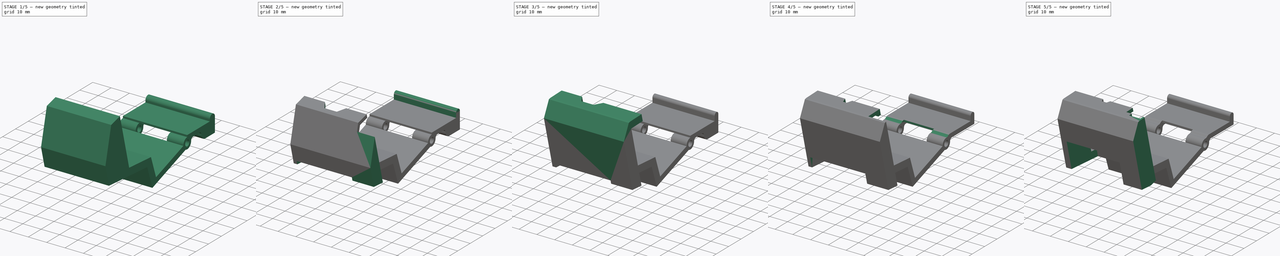
[diagram: build sequence overview — one tinted view per stage of 5, left to right]
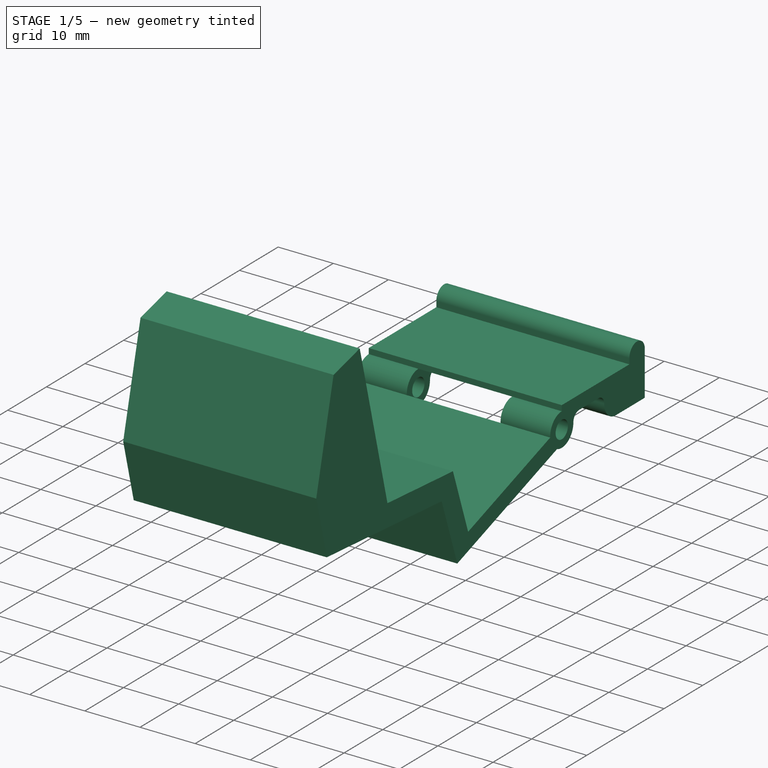
[diagram: stage 1 of 5 — iso view after this stage's code; geometry added in this stage tinted green]
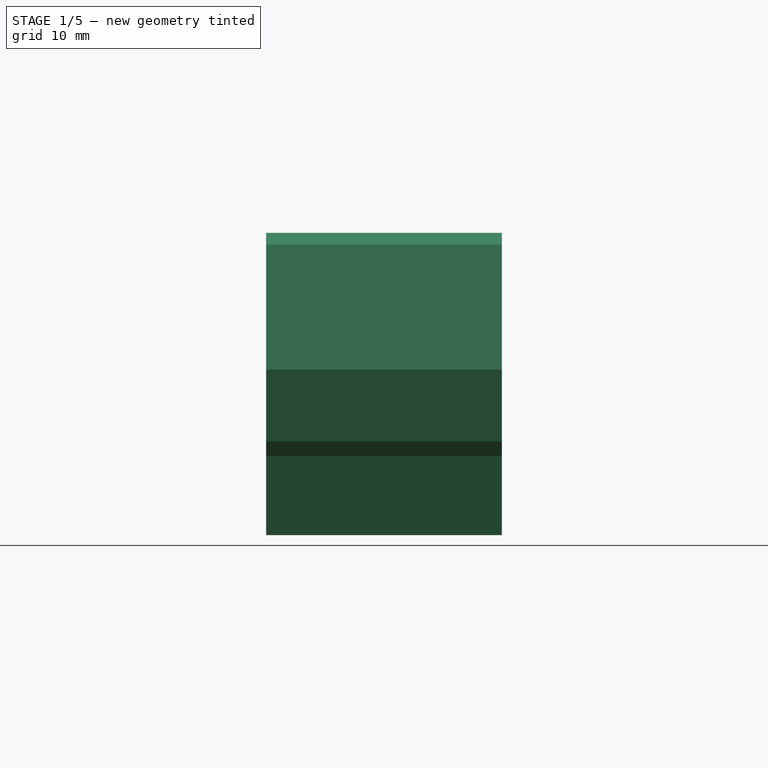
[diagram: stage 1 of 5 — front view after this stage's code; geometry added in this stage tinted green]
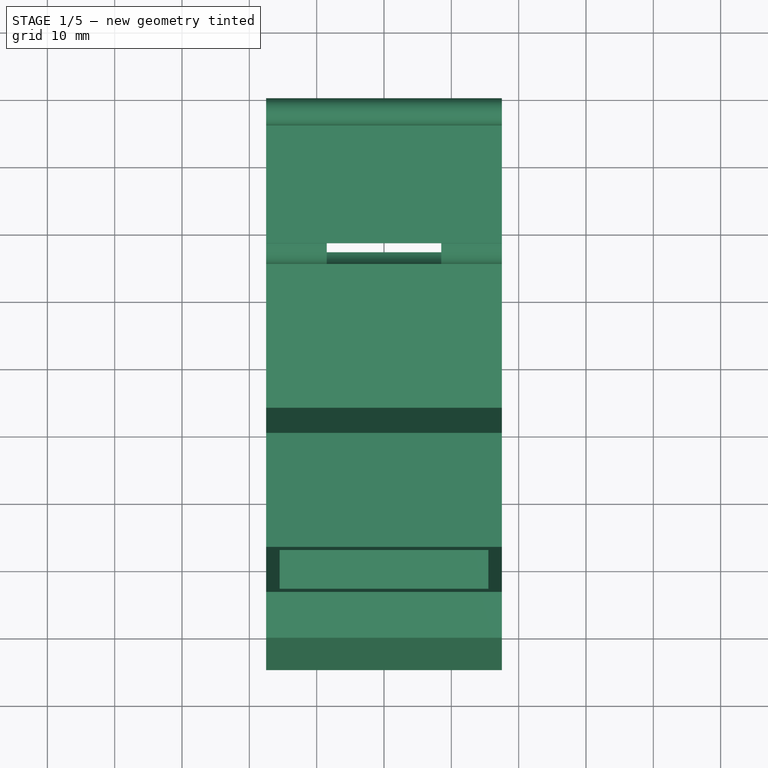
[diagram: stage 1 of 5 — top view after this stage's code; geometry added in this stage tinted green]
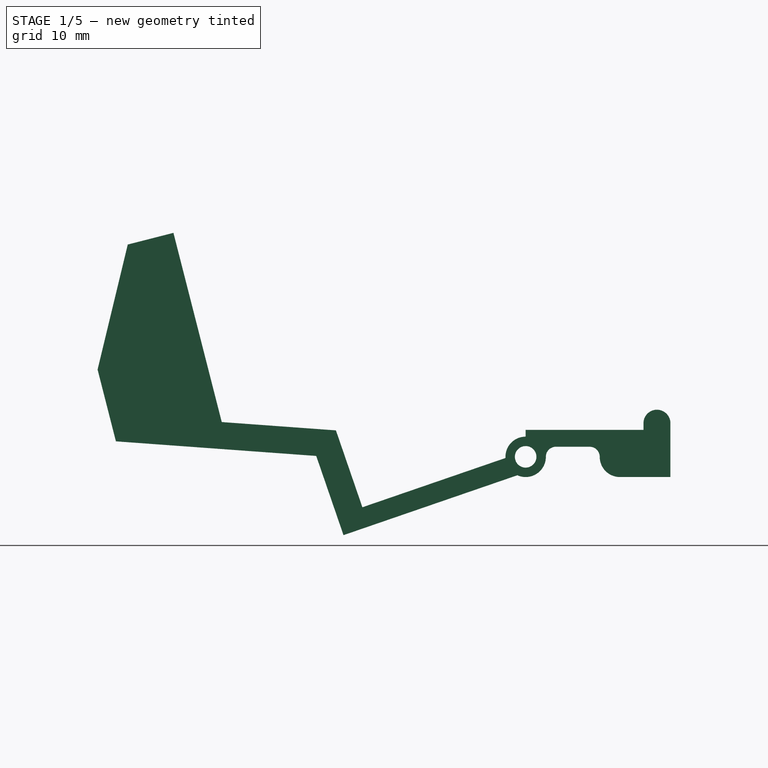
[diagram: stage 1 of 5 — right view after this stage's code; geometry added in this stage tinted green]
FCSTD DOCUMENT  (FreeCAD 1.0R38641 +468 (Git))
Label: k1_hopper
License: All rights reserved
LicenseURL: https://en.wikipedia.org/wiki/All_rights_reserved
objects: Sketcher::SketchObject×59, PartDesign::Pocket×37, PartDesign::Pad×34, PartDesign::Body×1
note: 332 computed .brp shape members not serialized (recipe doc carries the construction recipe); baked Part::Feature solids carry a one-line shape summary decoded from their .brp

FEATURE [Sketcher::SketchObject] Sketch
  ArcFitTolerance = 1e-06
  AttachmentSupport = -> [XY_Plane]
  FullyConstrained = true
  MakeInternals = false
  MapMode = 5
  sketch-geometry (4):
    g0: LineSegment StartX=-17.5 StartY=0 StartZ=0 EndX=17.5 EndY=0 EndZ=0
    g1: LineSegment StartX=17.5 StartY=0 StartZ=0 EndX=17.5 EndY=90 EndZ=0
    g2: LineSegment StartX=17.5 StartY=90 StartZ=0 EndX=-17.5 EndY=90 EndZ=0
    g3: LineSegment StartX=-17.5 StartY=90 StartZ=0 EndX=-17.5 EndY=0 EndZ=0
  constraints (11):
    c: Coincident(g0,g1)
    c: Coincident(g1,g2)
    c: Coincident(g2,g3)
    c: Coincident(g3,g0)
    c: Horizontal(g0)
    c: Vertical(g1)
    c: Vertical(g3)
    c: PointOnObject(g0,g-1)
    c: Symmetric(g2,g1,g-2)
    c: Distance(g2,g2) = 35
    c: DistanceY(g1,g1) = 90
FEATURE [PartDesign::Pad] Pad
  Direction = (0,0,1)
  Length = 7
  Length2 = 10
  Profile = -> Sketch
  ReferenceAxis = -> Sketch [N_Axis]
  Refine = true
  Suppressed = false
  Type = 0
FEATURE [Sketcher::SketchObject] Sketch001
  ArcFitTolerance = 1e-06
  AttachmentSupport = -> [Pad]
  ExternalGeometry = -> [Pad]
  FullyConstrained = true
  MakeInternals = false
  MapMode = 5
  Placement = pos=(17.5,0,0) rot=(0.57735,0.57735,0.57735;2.0944rad)
  sketch-geometry (1):
    g0: Circle CenterX=68.5 CenterY=3 CenterZ=0 NormalX=0 NormalY=0 NormalZ=1 AngleXU=0 Radius=1.6
  constraints (3):
    c: Distance(g0,g-3) = 21.5
    c: Distance(g0,g-1) = 3
    c: Diameter(g0) = 3.2
FEATURE [PartDesign::Pocket] Pocket
  BaseFeature = -> Pad
  Direction = (-1,0,0)
  Length = 5
  Length2 = 5
  Profile = -> Sketch001
  ReferenceAxis = -> Sketch001 [N_Axis]
  Refine = true
  Suppressed = false
  Type = 1
FEATURE [Sketcher::SketchObject] Sketch002
  ArcFitTolerance = 1e-06
  AttachmentSupport = -> [Pocket]
  ExternalGeometry = -> [Pocket]
  FullyConstrained = true
  MakeInternals = false
  MapMode = 5
  Placement = pos=(0,0,0) rot=(1,0,0;3.14159rad)
  sketch-geometry (4):
    g0: LineSegment StartX=-8.5 StartY=-65.5 StartZ=0 EndX=-8.5 EndY=-79 EndZ=0
    g1: LineSegment StartX=-8.5 StartY=-79 StartZ=0 EndX=8.5 EndY=-79 EndZ=0
    g2: LineSegment StartX=8.5 StartY=-79 StartZ=0 EndX=8.5 EndY=-65.5 EndZ=0
    g3: LineSegment StartX=8.5 StartY=-65.5 StartZ=0 EndX=-8.5 EndY=-65.5 EndZ=0
  constraints (11):
    c: Coincident(g0,g1)
    c: Coincident(g1,g2)
    c: Coincident(g2,g3)
    c: Coincident(g3,g0)
    c: Vertical(g0)
    c: Vertical(g2)
    c: Horizontal(g1)
    c: Symmetric(g0,g2,g-2)
    c: Distance(g3,g3) = 17
    c: Distance(g0,g-3) = 11
    c: Distance(g2,g2) = 13.5
FEATURE [PartDesign::Pocket] Pocket001
  BaseFeature = -> Pocket
  Direction = (0,0,1)
  Length = 6
  Length2 = 5
  Profile = -> Sketch002
  ReferenceAxis = -> Sketch002 [N_Axis]
  Refine = true
  Suppressed = false
  Type = 0
FEATURE [Sketcher::SketchObject] Sketch003
  ArcFitTolerance = 1e-06
  AttachmentSupport = -> [Pocket001]
  ExternalGeometry = -> [Pocket001]
  FullyConstrained = true
  MakeInternals = false
  MapMode = 5
  Placement = pos=(17.5,0,0) rot=(0.57735,0.57735,0.57735;2.0944rad)
  sketch-geometry (4):
    g0: LineSegment StartX=90 StartY=7 StartZ=0 EndX=90 EndY=8 EndZ=0
    g1: LineSegment StartX=90 StartY=7 StartZ=0 EndX=86 EndY=7 EndZ=0
    g2: LineSegment StartX=86 StartY=7 StartZ=0 EndX=86 EndY=8 EndZ=0
    g3: ArcOfCircle CenterX=88 CenterY=8 CenterZ=0 NormalX=0 NormalY=0 NormalZ=1 AngleXU=0 Radius=2 StartAngle=0 EndAngle=3.14159
  constraints (11):
    c: Coincident(g0,g-3)
    c: Vertical(g0)
    c: Coincident(g1,g0)
    c: PointOnObject(g1,g-3)
    c: Coincident(g2,g1)
    c: Vertical(g2)
    c: Coincident(g3,g0)
    c: Distance(g1,g1) = 4
    c: Equal(g0,g2)
    c: Tangent(g3,g2) = 1.5708
    c: Distance(g3,g1) = 1
FEATURE [PartDesign::Pad] Pad001
  BaseFeature = -> Pocket001
  Direction = (1,0,0)
  Length = 10
  Length2 = 10
  Profile = -> Sketch003
  ReferenceAxis = -> Sketch003 [N_Axis]
  Refine = true
  Suppressed = false
  Type = 3
  UpToFace = -> Pocket001 [Face2]
FEATURE [Sketcher::SketchObject] Sketch004
  ArcFitTolerance = 1e-06
  AttachmentSupport = -> [Pad001]
  ExternalGeometry = -> [Pad001]
  FullyConstrained = true
  MakeInternals = false
  MapMode = 5
  Placement = pos=(17.5,0,0) rot=(0.57735,0.57735,0.57735;2.0944rad)
  sketch-geometry (4):
    g0: LineSegment StartX=56.6311 StartY=7 StartZ=0 EndX=-0.420031 EndY=0.969535 EndZ=0
    g1: LineSegment StartX=57 StartY=0 StartZ=0 EndX=0.315789 EndY=-5.99168 EndZ=0
    g2: LineSegment StartX=0.315789 StartY=-5.99168 StartZ=0 EndX=-0.420031 EndY=0.969535 EndZ=0
    g3: LineSegment StartX=57 StartY=0 StartZ=0 EndX=56.6311 EndY=7 EndZ=0
  constraints (13):
    c: PointOnObject(g0,g-4)
    c: PointOnObject(g1,g-5)
    c: Coincident(g2,g1)
    c: Coincident(g2,g0)
    c: Perpendicular(g1,g2)
    c: Perpendicular(g0,g2)
    c: Distance(g1,g-5) = 33
    c: Distance(g2,g2) = 7
    c: Distance(g-5,g-5) = 90
    c: Distance(g1,g1) = 57
    c: Distance(g1,g-1) = 6
    c: Coincident(g3,g1)
    c: Coincident(g3,g0)
FEATURE [PartDesign::Pad] Pad002
  BaseFeature = -> Pad001
  Direction = (1,0,0)
  Length = 10
  Length2 = 10
  Profile = -> Sketch004
  ReferenceAxis = -> Sketch004 [N_Axis]
  Refine = true
  Suppressed = false
  Type = 3
  UpToFace = -> Pad001 [Face13]
FEATURE [Sketcher::SketchObject] Sketch005
  ArcFitTolerance = 1e-06
  AttachmentSupport = -> [Pad002]
  ExternalGeometry = -> [Pad002]
  FullyConstrained = true
  MakeInternals = false
  MapMode = 5
  Placement = pos=(17.5,0,0) rot=(0.57735,0.57735,0.57735;2.0944rad)
  sketch-geometry (3):
    g0: LineSegment StartX=-0.420031 StartY=0.969535 StartZ=0 EndX=-1.75292 EndY=13.5793 EndZ=0
    g1: LineSegment StartX=-0.420031 StartY=0.969535 StartZ=0 EndX=56.6311 EndY=7 EndZ=0
    g2: LineSegment StartX=56.6311 StartY=7 StartZ=0 EndX=-1.75292 EndY=13.5793 EndZ=0
  constraints (8):
    c: Coincident(g0,g-4)
    c: Parallel(g0,g-4)
    c: Coincident(g1,g0)
    c: Parallel(g1,g-3)
    c: PointOnObject(g1,g-5)
    c: Coincident(g2,g1)
    c: Coincident(g2,g0)
    c: Distance(g0,g0) = 12.68
FEATURE [PartDesign::Pocket] Pocket002
  BaseFeature = -> Pad002
  Direction = (-1,0,0)
  Length = 5
  Length2 = 5
  Profile = -> Sketch005
  ReferenceAxis = -> Sketch005 [N_Axis]
  Refine = true
  Suppressed = false
  Type = 1
FEATURE [Sketcher::SketchObject] Sketch006
  ArcFitTolerance = 1e-06
  AttachmentSupport = -> [Pocket002]
  ExternalGeometry = -> [Pocket002]
  FullyConstrained = true
  MakeInternals = false
  MapMode = 5
  Placement = pos=(17.5,0,0) rot=(0.57735,0.57735,0.57735;2.0944rad)
  sketch-geometry (4):
    g0: LineSegment StartX=0.315789 StartY=-5.99168 StartZ=0 EndX=-8.70201 EndY=17.3252 EndZ=0
    g1: LineSegment StartX=-8.70201 StartY=17.3252 StartZ=0 EndX=-1.34263 EndY=22.5059 EndZ=0
    g2: LineSegment StartX=-1.34263 StartY=22.5059 StartZ=0 EndX=17.4802 EndY=2.86165 EndZ=0
    g3: LineSegment StartX=0.315789 StartY=-5.99168 StartZ=0 EndX=17.4802 EndY=2.86165 EndZ=0
  constraints (11):
    c: Coincident(g0,g-4)
    c: Coincident(g1,g0)
    c: Coincident(g2,g1)
    c: PointOnObject(g2,g-3)
    c: Coincident(g3,g0)
    c: Coincident(g3,g2)
    c: Angle(g-4,g0) = 1.83452
    c: Distance(g0,g0) = 25
    c: Distance(g2,g-3) = 18
    c: Distance(g1,g1) = 9
    c: Angle(g0,g1) = 1.81514
FEATURE [PartDesign::Pad] Pad003
  BaseFeature = -> Pocket002
  Direction = (1,0,0)
  Length = 10
  Length2 = 10
  Profile = -> Sketch006
  ReferenceAxis = -> Sketch006 [N_Axis]
  Refine = true
  Suppressed = false
  Type = 3
  UpToFace = -> Pocket002 [Face4]
FEATURE [Sketcher::SketchObject] Sketch007
  ArcFitTolerance = 1e-06
  AttachmentSupport = -> [Pad003]
  ExternalGeometry = -> [Pad003]
  FullyConstrained = true
  MakeInternals = false
  MapMode = 5
  Placement = pos=(17.5,0,0) rot=(0.57735,0.57735,0.57735;2.0944rad)
  sketch-geometry (6):
    g0: ArcOfCircle CenterX=68.5 CenterY=3 CenterZ=0 NormalX=0 NormalY=0 NormalZ=1 AngleXU=0 Radius=3 StartAngle=4.71239 EndAngle=6.28319
    g1: ArcOfCircle CenterX=73 CenterY=3 CenterZ=0 NormalX=0 NormalY=0 NormalZ=1 AngleXU=0 Radius=1.5 StartAngle=1.5708 EndAngle=3.14159
    g2: ArcOfCircle CenterX=82.5 CenterY=3 CenterZ=0 NormalX=0 NormalY=0 NormalZ=1 AngleXU=0 Radius=3 StartAngle=3.14159 EndAngle=4.71239
    g3: LineSegment StartX=73 StartY=4.5 StartZ=0 EndX=78 EndY=4.5 EndZ=0
    g4: ArcOfCircle CenterX=78 CenterY=3 CenterZ=0 NormalX=0 NormalY=0 NormalZ=1 AngleXU=0 Radius=1.5 StartAngle=0 EndAngle=1.5708
    g5: LineSegment StartX=68.5 StartY=0 StartZ=0 EndX=82.5 EndY=0 EndZ=0
  constraints (15):
    c: Coincident(g0,g-3)
    c: Tangent(g0,g-1) = -1.5708
    c: Tangent(g2,g-1) = -1.5708
    c: Horizontal(g3)
    c: Tangent(g4,g2) = 1.5708
    c: Tangent(g3,g1) = 1.5708
    c: Tangent(g4,g3) = 1.5708
    c: Distance(g3,g3) = 5
    c: Tangent(g1,g0) = 1.5708
    c: Tangent(g5,g0) = -1.5708
    c: Coincident(g5,g2)
    c: Equal(g1,g4)
    c: Equal(g2,g0)
    c: Angle(g0) = 1.5708
    c: Radius(g4) = 1.5
FEATURE [PartDesign::Pocket] Pocket003
  BaseFeature = -> Pad003
  Direction = (-1,0,0)
  Length = 5
  Length2 = 5
  Profile = -> Sketch007
  ReferenceAxis = -> Sketch007 [N_Axis]
  Refine = true
  Suppressed = false
  Type = 1
FEATURE [Sketcher::SketchObject] Sketch008
  ArcFitTolerance = 1e-06
  AttachmentSupport = -> [Pocket003]
  ExternalGeometry = -> [Pocket003]
  FullyConstrained = true
  MakeInternals = false
  MapMode = 5
  Placement = pos=(17.5,0,0) rot=(0.57735,0.57735,0.57735;2.0944rad)
  sketch-geometry (7):
    g0: ArcOfCircle CenterX=68.5 CenterY=3 CenterZ=0 NormalX=0 NormalY=0 NormalZ=1 AngleXU=0 Radius=3 StartAngle=3.14159 EndAngle=4.71239
    g1: ArcOfCircle CenterX=64 CenterY=3 CenterZ=0 NormalX=0 NormalY=0 NormalZ=1 AngleXU=0 Radius=1.5 StartAngle=3e-16 EndAngle=1.6112
    g2: ArcOfCircle CenterX=47.9334 CenterY=2.05835 CenterZ=0 NormalX=0 NormalY=0 NormalZ=1 AngleXU=0 Radius=3 StartAngle=4.8177 EndAngle=6.3885
    g3: ArcOfCircle CenterX=52.4085 CenterY=2.53138 CenterZ=0 NormalX=0 NormalY=0 NormalZ=1 AngleXU=0 Radius=1.5 StartAngle=1.6112 EndAngle=3.2469
    g4: LineSegment StartX=52.3479 StartY=4.03015 StartZ=0 EndX=63.9394 EndY=4.49878 EndZ=0
    g5: LineSegment StartX=48.2488 StartY=-0.925032 StartZ=0 EndX=57 EndY=0 EndZ=0
    g6: LineSegment StartX=57 StartY=0 StartZ=0 EndX=68.5 EndY=0 EndZ=0
  constraints (17):
    c: Coincident(g0,g-3)
    c: Equal(g0,g2)
    c: Tangent(g0,g-1) = -1.5708
    c: Tangent(g1,g0) = 1.5708
    c: Tangent(g3,g2) = 1.5708
    c: Angle(g0) = 1.5708
    c: Tangent(g4,g3) = 1.5708
    c: Tangent(g4,g1) = 1.5708
    c: Equal(g3,g1)
    c: Radius(g1) = 1.5
    c: Angle(g2) = 1.5708
    c: Tangent(g5,g2) = -1.5708
    c: Coincident(g6,g0)
    c: Distance(g5,g5) = 8.8
    c: Coincident(g5,g6)
    c: Coincident(g5,g-4)
    c: PointOnObject(g2,g-4)
FEATURE [PartDesign::Pocket] Pocket004
  BaseFeature = -> Pocket003
  Direction = (-1,0,0)
  Length = 5
  Length2 = 5
  Profile = -> Sketch008
  ReferenceAxis = -> Sketch008 [N_Axis]
  Refine = true
  Suppressed = false
  Type = 1
FEATURE [Sketcher::SketchObject] Sketch009
  ArcFitTolerance = 1e-06
  AttachmentSupport = -> [Pocket004]
  ExternalGeometry = -> [Pocket004]
  FullyConstrained = true
  MakeInternals = false
  MapMode = 5
  Placement = pos=(-17.5,0,4.7e-15) rot=(0.57735,-0.57735,-0.57735;2.0944rad)
  sketch-geometry (9):
    g0: LineSegment [constr] StartX=-68.5 StartY=3 StartZ=0 EndX=-66 EndY=3 EndZ=0
    g1: LineSegment [constr] StartX=-66 StartY=3 StartZ=0 EndX=-44.2531 EndY=-4.48807 EndZ=0
    g2: LineSegment [constr] StartX=-44.2531 StartY=-4.48807 StartZ=0 EndX=-41.6485 EndY=3.07608 EndZ=0
    g3: LineSegment StartX=-65.5048 StartY=2.82951 StartZ=0 EndX=-44.2531 EndY=-4.48807 EndZ=0
    g4: LineSegment StartX=-67.2691 StartY=0.264135 StartZ=0 EndX=-41.4477 EndY=-8.6269 EndZ=0
    g5: LineSegment StartX=-41.4477 StartY=-8.6269 StartZ=0 EndX=-39.1277 EndY=-1.88915 EndZ=0
    g6: LineSegment StartX=-44.2531 StartY=-4.48807 StartZ=0 EndX=-43.2096 EndY=-1.45768 EndZ=0
    g7: LineSegment StartX=-39.1277 StartY=-1.88915 StartZ=0 EndX=-43.2096 EndY=-1.45768 EndZ=0
    g8: ArcOfCircle CenterX=-68.5 CenterY=3.00001 CenterZ=0 NormalX=0 NormalY=0 NormalZ=1 AngleXU=0 Radius=3.00001 StartAngle=5.13516 EndAngle=6.22632
  constraints (27):
    c: Coincident(g0,g-3)
    c: Horizontal(g0)
    c: DistanceX(g0,g0) = 2.5
    c: Coincident(g1,g0)
    c: Coincident(g2,g1)
    c: Angle(g0,g1) = 2.80998
    c: Perpendicular(g1,g2)
    c: Distance(g2,g2) = 8
    c: Distance(g1,g1) = 23
    c: PointOnObject(g3,g-6)
    c: Coincident(g3,g1)
    c: PointOnObject(g3,g1)
    c: PointOnObject(g4,g-6)
    c: Coincident(g5,g4)
    c: PointOnObject(g5,g-7)
    c: Coincident(g6,g1)
    c: PointOnObject(g6,g-7)
    c: Coincident(g7,g5)
    c: Coincident(g7,g6)
    c: Parallel(g5,g6)
    c: PointOnObject(g6,g2)
    c: Distance(g4,g3) = 3
    c: Parallel(g4,g3)
    c: Distance(g1,g5) = 4
    c: Coincident(g8,g3)
    c: Coincident(g8,g4)
    c: Tangent(g8,g-6)
FEATURE [PartDesign::Pad] Pad004
  BaseFeature = -> Pocket004
  Direction = (-1,0,0)
  Length = 10
  Length2 = 10
  Profile = -> Sketch009
  ReferenceAxis = -> Sketch009 [N_Axis]
  Refine = true
  Suppressed = false
  Type = 3
  UpToFace = -> Pocket004 [Face2]
FEATURE [Sketcher::SketchObject] Sketch010
  ArcFitTolerance = 1e-06
  AttachmentSupport = -> [Pad004]
  ExternalGeometry = -> [Pad004]
  FullyConstrained = true
  MakeInternals = false
  MapMode = 5
  Placement = pos=(-17.5,0,0) rot=(0.57735,-0.57735,-0.57735;2.0944rad)
  sketch-geometry (6):
    g0: LineSegment StartX=-44.2531 StartY=-4.48807 StartZ=0 EndX=-40.871 EndY=5.33412 EndZ=0
    g1: ArcOfCircle CenterX=-68.5 CenterY=3 CenterZ=0 NormalX=0 NormalY=0 NormalZ=1 AngleXU=0 Radius=3 StartAngle=6.22632 EndAngle=7.85398
    g2: LineSegment StartX=-68.5 StartY=6 StartZ=0 EndX=-68.5 EndY=7 EndZ=0
    g3: LineSegment StartX=-68.5 StartY=7 StartZ=0 EndX=-56.6311 EndY=7 EndZ=0
    g4: LineSegment StartX=-56.6311 StartY=7 StartZ=0 EndX=-40.871 EndY=5.33412 EndZ=0
    g5: LineSegment StartX=-65.5048 StartY=2.82951 StartZ=0 EndX=-44.2531 EndY=-4.48807 EndZ=0
  constraints (15):
    c: Coincident(g0,g-4)
    c: PointOnObject(g0,g-7)
    c: PointOnObject(g-3,g0)
    c: Coincident(g1,g-5)
    c: Coincident(g1,g-4)
    c: Coincident(g2,g1)
    c: PointOnObject(g2,g-6)
    c: Vertical(g2)
    c: Perpendicular(g1,g2)
    c: Coincident(g3,g2)
    c: Coincident(g3,g-7)
    c: Coincident(g4,g3)
    c: Coincident(g4,g0)
    c: Coincident(g5,g1)
    c: Coincident(g5,g0)
FEATURE [PartDesign::Pocket] Pocket005
  BaseFeature = -> Pad004
  Direction = (1,0,0)
  Length = 5
  Length2 = 5
  Profile = -> Sketch010
  ReferenceAxis = -> Sketch010 [N_Axis]
  Refine = true
  Suppressed = false
  Type = 1
FEATURE [Sketcher::SketchObject] Sketch011
  ArcFitTolerance = 1e-06
  AttachmentSupport = -> [Pocket005]
  ExternalGeometry = -> [Pocket005]
  FullyConstrained = true
  MakeInternals = false
  MapMode = 5
  Placement = pos=(-17.5,0,0) rot=(0.57735,-0.57735,-0.57735;2.0944rad)
  sketch-geometry (7):
    g0: LineSegment StartX=-40.3208 StartY=6.93204 StartZ=0 EndX=-23.3658 EndY=8.16822 EndZ=0
    g1: LineSegment StartX=-40.871 StartY=5.33412 StartZ=0 EndX=-40.3208 EndY=6.93204 EndZ=0
    g2: LineSegment StartX=-23.3658 StartY=8.16822 StartZ=0 EndX=-16.1881 EndY=36.2659 EndZ=0
    g3: LineSegment StartX=-16.1881 StartY=36.2659 StartZ=0 EndX=-9.40593 EndY=34.5334 EndZ=0
    g4: LineSegment StartX=-9.40593 StartY=34.5334 StartZ=0 EndX=-4.92317 EndY=15.9667 EndZ=0
    g5: LineSegment StartX=-17.4802 StartY=2.86165 StartZ=0 EndX=-40.871 EndY=5.33412 EndZ=0
    g6: LineSegment StartX=-17.4802 StartY=2.86165 StartZ=0 EndX=-4.92317 EndY=15.9667 EndZ=0
  constraints (19):
    c: Coincident(g1,g-3)
    c: Coincident(g1,g0)
    c: Parallel(g1,g-3)
    c: Distance(g0,g0) = 17
    c: Distance(g1,g1) = 1.69
    c: Angle(g1,g0) = 1.97519
    c: Coincident(g2,g0)
    c: Distance(g2,g2) = 29
    c: Angle(g2,g0) = 1.89368
    c: Coincident(g3,g2)
    c: Perpendicular(g2,g3)
    c: Distance(g3,g3) = 7
    c: Coincident(g4,g3)
    c: PointOnObject(g4,g-4)
    c: Coincident(g5,g-4)
    c: Coincident(g5,g1)
    c: Coincident(g6,g5)
    c: Coincident(g6,g4)
    c: Distance(g6,g6) = 18.15
FEATURE [PartDesign::Pad] Pad005
  BaseFeature = -> Pocket005
  Direction = (-1,0,0)
  Length = 10
  Length2 = 10
  Profile = -> Sketch011
  ReferenceAxis = -> Sketch011 [N_Axis]
  Refine = true
  Suppressed = false
  Type = 3
  UpToFace = -> Pocket005 [Face2]
FEATURE [Sketcher::SketchObject] Sketch012
  ArcFitTolerance = 1e-06
  AttachmentSupport = -> [Pad005]
  ExternalGeometry = -> [Pad005]
  FullyConstrained = true
  MakeInternals = false
  MapMode = 5
  Placement = pos=(-17.5,0,0) rot=(0.57735,-0.57735,-0.57735;2.0944rad)
  sketch-geometry (7):
    g0: LineSegment StartX=-39.1277 StartY=-1.88915 StartZ=0 EndX=-37.3979 EndY=3.13453 EndZ=0
    g1: LineSegment StartX=-37.3979 StartY=3.13453 StartZ=0 EndX=-7.6471 EndY=5.30363 EndZ=0
    g2: LineSegment StartX=-7.6471 StartY=5.30363 StartZ=0 EndX=-4.92317 EndY=15.9667 EndZ=0
    g3: LineSegment StartX=-39.1277 StartY=-1.88915 StartZ=0 EndX=-0.315789 EndY=-5.99168 EndZ=0
    g4: LineSegment StartX=-0.315789 StartY=-5.99168 StartZ=0 EndX=8.70201 EndY=17.3252 EndZ=0
    g5: LineSegment StartX=8.70201 StartY=17.3252 StartZ=0 EndX=1.34263 EndY=22.5059 EndZ=0
    g6: LineSegment StartX=1.34263 StartY=22.5059 StartZ=0 EndX=-4.92317 EndY=15.9667 EndZ=0
  constraints (16):
    c: Coincident(g0,g-3)
    c: Coincident(g1,g0)
    c: Coincident(g2,g1)
    c: Coincident(g2,g-4)
    c: Coincident(g3,g0)
    c: Coincident(g3,g-3)
    c: Coincident(g4,g3)
    c: Coincident(g4,g-5)
    c: Coincident(g5,g4)
    c: Coincident(g5,g-5)
    c: Coincident(g6,g5)
    c: Coincident(g6,g2)
    c: Parallel(g0,g-7)
    c: Parallel(g1,g-6)
    c: Parallel(g-8,g2)
    c: Distance(g0,g-6) = 4
FEATURE [PartDesign::Pocket] Pocket006
  BaseFeature = -> Pad005
  Direction = (1,0,0)
  Length = 5
  Length2 = 5
  Profile = -> Sketch012
  ReferenceAxis = -> Sketch012 [N_Axis]
  Refine = true
  Suppressed = false
  Type = 1
FEATURE [Sketcher::SketchObject] Sketch013
  ArcFitTolerance = 1e-06
  AttachmentSupport = -> [Pocket006]
  ExternalGeometry = -> [Pocket006]
  FullyConstrained = true
  MakeInternals = false
  MapMode = 5
  Placement = pos=(0,23.8932,6.10363) rot=(0,0.61339,0.78978;3.14159rad)
  sketch-geometry (4):
    g0: LineSegment StartX=-15.5 StartY=29.1309 StartZ=0 EndX=-15.5 EndY=4.13088 EndZ=0
    g1: LineSegment StartX=-15.5 StartY=4.13088 StartZ=0 EndX=15.5 EndY=4.13088 EndZ=0
    g2: LineSegment StartX=15.5 StartY=4.13088 StartZ=0 EndX=15.5 EndY=29.1309 EndZ=0
    g3: LineSegment StartX=15.5 StartY=29.1309 StartZ=0 EndX=-15.5 EndY=29.1309 EndZ=0
  constraints (12):
    c: Coincident(g0,g1)
    c: Coincident(g1,g2)
    c: Coincident(g2,g3)
    c: Coincident(g3,g0)
    c: Vertical(g0)
    c: Vertical(g2)
    c: Horizontal(g1)
    c: Horizontal(g3)
    c: Distance(g2,g-4) = 2
    c: Distance(g0,g-3) = 2
    c: Distance(g2,g-5) = 2
    c: Distance(g-4,g1) = 2
FEATURE [PartDesign::Pocket] Pocket007
  BaseFeature = -> Pocket006
  Direction = (0,-0.968886,-0.247506)
  Length = 6
  Length2 = 5
  Profile = -> Sketch013
  ReferenceAxis = -> Sketch013 [N_Axis]
  Refine = true
  Suppressed = false
  Type = 0
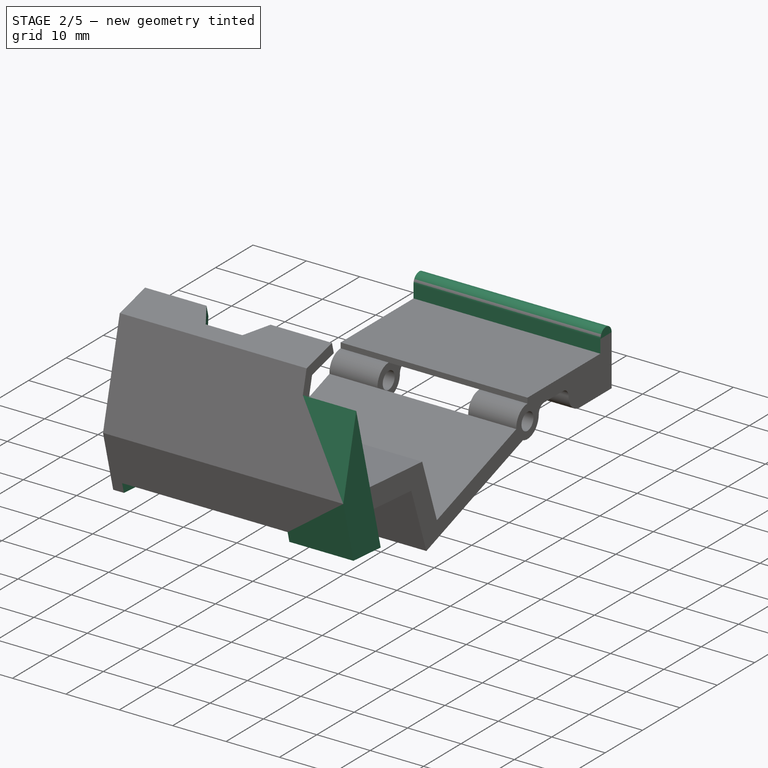
[diagram: stage 2 of 5 — iso view after this stage's code; geometry added in this stage tinted green]
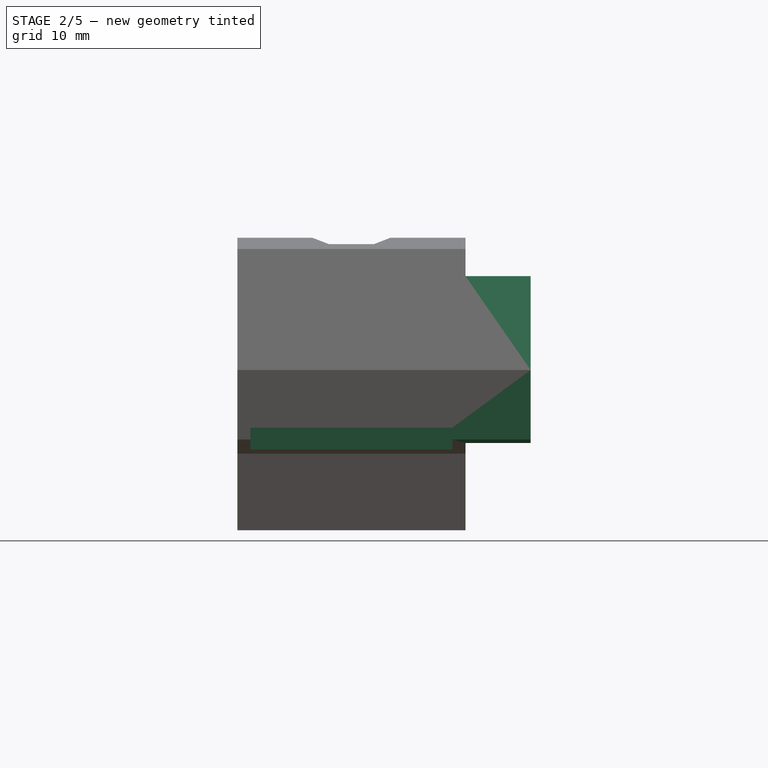
[diagram: stage 2 of 5 — front view after this stage's code; geometry added in this stage tinted green]
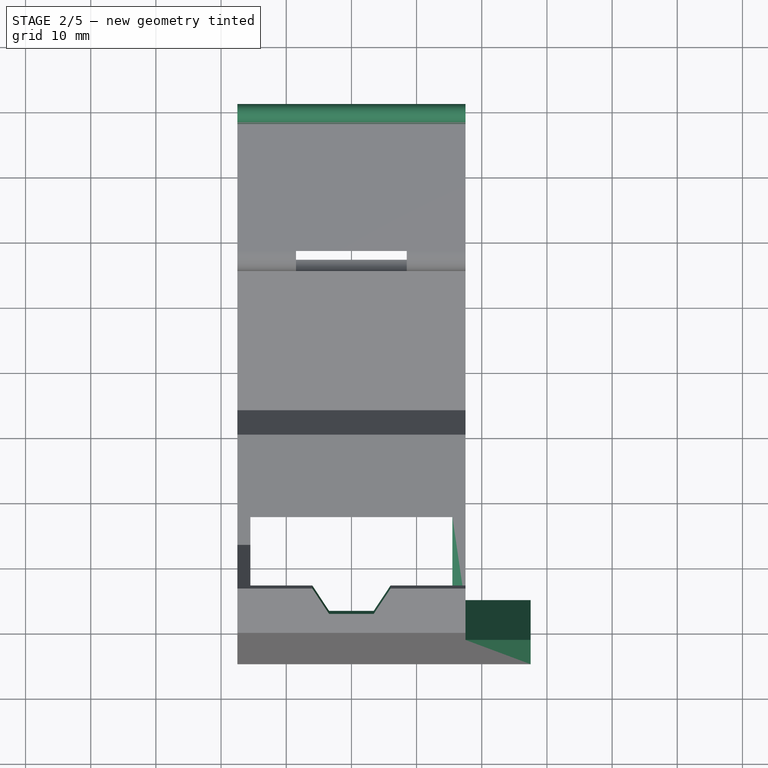
[diagram: stage 2 of 5 — top view after this stage's code; geometry added in this stage tinted green]
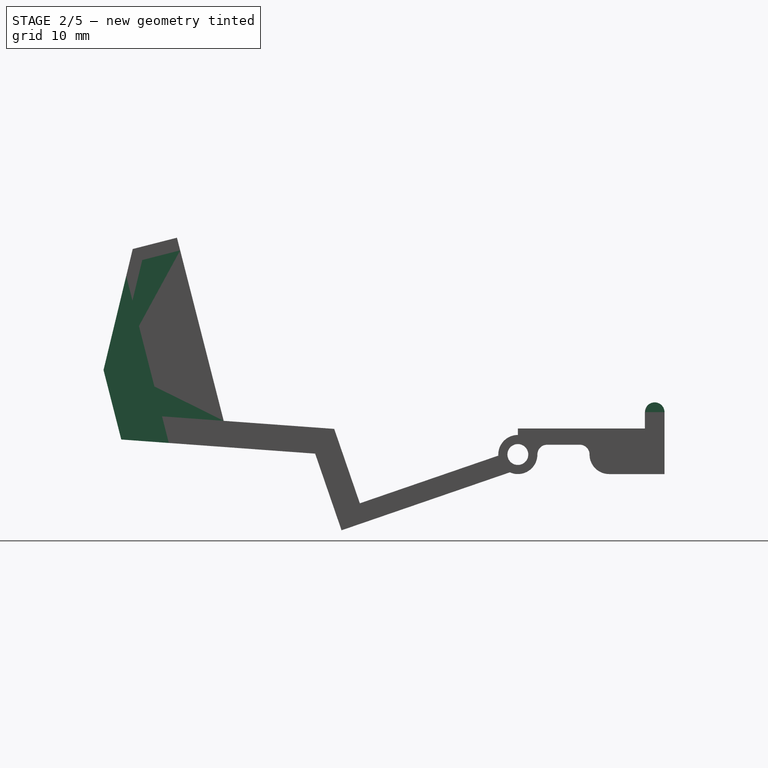
[diagram: stage 2 of 5 — right view after this stage's code; geometry added in this stage tinted green]
FEATURE [Sketcher::SketchObject] Sketch014
  ArcFitTolerance = 1e-06
  AttachmentSupport = -> [Pocket007]
  ExternalGeometry = -> [Pocket007]
  FullyConstrained = true
  MakeInternals = false
  MapMode = 5
  Placement = pos=(15.5,0,0) rot=(0.57735,-0.57735,-0.57735;2.0944rad)
  sketch-geometry (4):
    g0: LineSegment StartX=-10.8698 StartY=32.8431 StartZ=0 EndX=-6.88858 EndY=16.3536 EndZ=0
    g1: LineSegment StartX=-6.88858 StartY=16.3536 StartZ=0 EndX=-9.36584 EndY=6.65608 EndZ=0
    g2: LineSegment StartX=-9.36584 StartY=6.65608 StartZ=0 EndX=-17.0575 EndY=8.62095 EndZ=0
    g3: LineSegment StartX=-17.0575 StartY=8.62095 StartZ=0 EndX=-10.8698 EndY=32.8431 EndZ=0
  constraints (10):
    c: Coincident(g0,g-6)
    c: Coincident(g1,g0)
    c: Coincident(g2,g1)
    c: Coincident(g2,g-6)
    c: Coincident(g3,g2)
    c: Coincident(g3,g0)
    c: Perpendicular(g3,g2)
    c: Parallel(g1,g-5)
    c: Parallel(g0,g-3)
    c: Distance(g1,g-5) = 2
FEATURE [PartDesign::Pocket] Pocket008
  BaseFeature = -> Pocket007
  Direction = (1,0,0)
  Length = 0
  Length2 = 5
  Profile = -> Sketch014
  ReferenceAxis = -> Sketch014 [N_Axis]
  Refine = true
  Suppressed = false
  Type = 3
  UpToFace = -> Pocket007 [Face35]
FEATURE [Sketcher::SketchObject] Sketch015
  ArcFitTolerance = 1e-06
  AttachmentSupport = -> [Pocket008]
  ExternalGeometry = -> [Pocket008]
  FullyConstrained = true
  MakeInternals = false
  MapMode = 5
  Placement = pos=(0,-7.70509,30.1623) rot=(1,0,0;0.250106rad)
  sketch-geometry (4):
    g0: LineSegment StartX=-6 StartY=24.6605 StartZ=0 EndX=6 EndY=24.6605 EndZ=0
    g1: LineSegment StartX=-6 StartY=24.6605 StartZ=0 EndX=-1.5 EndY=17.6605 EndZ=0
    g2: LineSegment StartX=-1.5 StartY=17.6605 StartZ=0 EndX=1.5 EndY=17.6605 EndZ=0
    g3: LineSegment StartX=1.5 StartY=17.6605 StartZ=0 EndX=6 EndY=24.6605 EndZ=0
  constraints (10):
    c: PointOnObject(g0,g-3)
    c: Coincident(g1,g0)
    c: PointOnObject(g1,g-4)
    c: Coincident(g2,g1)
    c: Coincident(g3,g0)
    c: Symmetric(g0,g0,g-2)
    c: Distance(g0,g0) = 12
    c: Distance(g2,g2) = 3
    c: Coincident(g2,g3)
    c: Symmetric(g1,g2,g-2)
FEATURE [PartDesign::Pocket] Pocket009
  BaseFeature = -> Pocket008
  Direction = (0,0.247506,-0.968886)
  Length = 5
  Length2 = 5
  Profile = -> Sketch015
  ReferenceAxis = -> Sketch015 [N_Axis]
  Refine = true
  Suppressed = false
  Type = 0
FEATURE [Sketcher::SketchObject] Sketch016
  ArcFitTolerance = 1e-06
  AttachmentSupport = -> [Pocket009]
  ExternalGeometry = -> [Pocket009]
  FullyConstrained = true
  MakeInternals = false
  MapMode = 5
  Placement = pos=(17.5,0,0) rot=(0.57735,0.57735,0.57735;2.0944rad)
  sketch-geometry (4):
    g0: LineSegment StartX=8.40292 StartY=30.3791 StartZ=0 EndX=14.9445 EndY=4.77159 EndZ=0
    g1: LineSegment StartX=8.40292 StartY=30.3791 StartZ=0 EndX=4.92317 EndY=15.9667 EndZ=0
    g2: LineSegment StartX=14.9445 StartY=4.77159 StartZ=0 EndX=7.6471 EndY=5.30363 EndZ=0
    g3: LineSegment StartX=7.6471 StartY=5.30363 StartZ=0 EndX=4.92317 EndY=15.9667 EndZ=0
  constraints (10):
    c: Parallel(g0,g-3)
    c: PointOnObject(g0,g-4)
    c: Coincident(g1,g0)
    c: Coincident(g1,g-4)
    c: PointOnObject(g0,g-6)
    c: Coincident(g2,g0)
    c: Coincident(g2,g-7)
    c: Coincident(g3,g-7)
    c: Coincident(g3,g1)
    c: Distance(g0,g-3) = 9
FEATURE [PartDesign::Pad] Pad006
  BaseFeature = -> Pocket009
  Direction = (1,0,0)
  Length = 10
  Length2 = 10
  Profile = -> Sketch016
  ReferenceAxis = -> Sketch016 [N_Axis]
  Refine = true
  Suppressed = false
  Type = 0
FEATURE [Sketcher::SketchObject] Sketch017
  ArcFitTolerance = 1e-06
  AttachmentSupport = -> [Pad006]
  ExternalGeometry = -> [Pad006]
  FullyConstrained = true
  MakeInternals = false
  MapMode = 5
  Placement = pos=(15.5,0,0) rot=(0.57735,-0.57735,-0.57735;2.0944rad)
  sketch-geometry (5):
    g0: LineSegment StartX=-22.8708 StartY=10.106 StartZ=0 EndX=-14.1508 EndY=7.87843 EndZ=0
    g1: LineSegment StartX=-14.1508 StartY=7.87843 StartZ=0 EndX=-9.36532 EndY=26.6117 EndZ=0
    g2: LineSegment StartX=-9.36532 StartY=26.6117 StartZ=0 EndX=-10.8698 EndY=32.8431 EndZ=0
    g3: LineSegment StartX=-10.8698 StartY=32.8431 StartZ=0 EndX=-16.6831 EndY=34.3281 EndZ=0
    g4: LineSegment StartX=-16.6831 StartY=34.3281 StartZ=0 EndX=-22.8708 EndY=10.106 EndZ=0
  constraints (12):
    c: Coincident(g0,g-6)
    c: PointOnObject(g0,g-3)
    c: Coincident(g1,g0)
    c: PointOnObject(g1,g-3)
    c: Coincident(g2,g1)
    c: Coincident(g2,g-5)
    c: Coincident(g3,g2)
    c: Coincident(g3,g-6)
    c: Coincident(g4,g3)
    c: Coincident(g4,g0)
    c: PointOnObject(g1,g-4)
    c: PointOnObject(g0,g-7)
FEATURE [PartDesign::Pocket] Pocket010
  BaseFeature = -> Pad006
  Direction = (1,0,0)
  Length = 5
  Length2 = 5
  Profile = -> Sketch017
  ReferenceAxis = -> Sketch017 [N_Axis]
  Refine = true
  Suppressed = false
  Type = 0
FEATURE [Sketcher::SketchObject] Sketch018
  ArcFitTolerance = 1e-06
  AttachmentSupport = -> [Pocket010]
  ExternalGeometry = -> [Pocket010]
  FullyConstrained = true
  MakeInternals = false
  MapMode = 5
  Placement = pos=(-15.5,0,0) rot=(0.57735,0.57735,0.57735;2.0944rad)
  sketch-geometry (3):
    g0: LineSegment StartX=9.36584 StartY=6.65608 StartZ=0 EndX=23.3658 EndY=8.16822 EndZ=0
    g1: LineSegment StartX=23.3658 StartY=8.16822 StartZ=0 EndX=22.8708 EndY=10.106 EndZ=0
    g2: LineSegment StartX=22.8708 StartY=10.106 StartZ=0 EndX=9.36584 EndY=6.65608 EndZ=0
  constraints (6):
    c: Coincident(g0,g-4)
    c: Coincident(g0,g-3)
    c: Coincident(g1,g0)
    c: Coincident(g1,g-4)
    c: Coincident(g2,g1)
    c: Coincident(g2,g0)
FEATURE [PartDesign::Pocket] Pocket011
  BaseFeature = -> Pocket010
  Direction = (-1,0,0)
  Length = 0
  Length2 = 5
  Profile = -> Sketch018
  ReferenceAxis = -> Sketch018 [N_Axis]
  Refine = true
  Suppressed = false
  Type = 3
  UpToFace = -> Pocket010 [Face44]
FEATURE [Sketcher::SketchObject] Sketch019
  ArcFitTolerance = 1e-06
  AttachmentSupport = -> [Pocket011]
  ExternalGeometry = -> [Pocket011]
  FullyConstrained = true
  MakeInternals = false
  MapMode = 5
  Placement = pos=(15.5,0,0) rot=(0.57735,-0.57735,-0.57735;2.0944rad)
  sketch-geometry (4):
    g0: LineSegment StartX=-23.3658 StartY=8.16822 StartZ=0 EndX=-14.3262 EndY=7.19185 EndZ=0
    g1: LineSegment StartX=-14.3262 StartY=7.19185 StartZ=0 EndX=-14.1508 EndY=7.87843 EndZ=0
    g2: LineSegment StartX=-14.1508 StartY=7.87843 StartZ=0 EndX=-22.8708 EndY=10.106 EndZ=0
    g3: LineSegment StartX=-23.3658 StartY=8.16822 StartZ=0 EndX=-22.8708 EndY=10.106 EndZ=0
  constraints (9):
    c: Coincident(g0,g-3)
    c: Coincident(g1,g0)
    c: Coincident(g1,g-5)
    c: Coincident(g2,g1)
    c: Coincident(g2,g-4)
    c: Coincident(g3,g0)
    c: Coincident(g3,g2)
    c: PointOnObject(g0,g-6)
    c: Parallel(g1,g-5)
FEATURE [PartDesign::Pocket] Pocket012
  BaseFeature = -> Pocket011
  Direction = (1,0,0)
  Length = 5
  Length2 = 5
  Profile = -> Sketch019
  ReferenceAxis = -> Sketch019 [N_Axis]
  Refine = true
  Suppressed = false
  Type = 0
FEATURE [Sketcher::SketchObject] Sketch020
  ArcFitTolerance = 1e-06
  AttachmentSupport = -> [Pocket012]
  ExternalGeometry = -> [Pocket012]
  FullyConstrained = true
  MakeInternals = false
  MapMode = 5
  Placement = pos=(0,8.45049,2.15871) rot=(1,0,0;1.8209rad)
  sketch-geometry (4):
    g0: LineSegment StartX=-15.5 StartY=5.13088 StartZ=0 EndX=-15.5 EndY=-4.86912 EndZ=0
    g1: LineSegment StartX=-15.5 StartY=-4.86912 StartZ=0 EndX=15.5 EndY=-4.86912 EndZ=0
    g2: LineSegment StartX=15.5 StartY=-4.86912 StartZ=0 EndX=15.5 EndY=5.13088 EndZ=0
    g3: LineSegment StartX=15.5 StartY=5.13088 StartZ=0 EndX=-15.5 EndY=5.13088 EndZ=0
  constraints (12):
    c: Coincident(g0,g1)
    c: Coincident(g1,g2)
    c: Coincident(g2,g3)
    c: Coincident(g3,g0)
    c: Vertical(g0)
    c: Vertical(g2)
    c: Horizontal(g1)
    c: Horizontal(g3)
    c: PointOnObject(g0,g-6)
    c: PointOnObject(g2,g-5)
    c: Distance(g0,g0) = 10
    c: Distance(g2,g-5) = 1
FEATURE [PartDesign::Pocket] Pocket013
  BaseFeature = -> Pocket012
  Direction = (0,0.968886,0.247506)
  Length = 20
  Length2 = 5
  Profile = -> Sketch020
  ReferenceAxis = -> Sketch020 [N_Axis]
  Refine = true
  Suppressed = false
  Type = 0
FEATURE [Sketcher::SketchObject] Sketch021
  ArcFitTolerance = 1e-06
  AttachmentSupport = -> [Pocket013]
  ExternalGeometry = -> [Pocket013]
  FullyConstrained = true
  MakeInternals = false
  MapMode = 5
  Placement = pos=(17.5,0,0) rot=(0.57735,0.57735,0.57735;2.0944rad)
  sketch-geometry (3):
    g0: LineSegment StartX=23.3658 StartY=8.16822 StartZ=0 EndX=13.9005 EndY=8.85832 EndZ=0
    g1: LineSegment StartX=13.9005 StartY=8.85832 StartZ=0 EndX=14.3262 EndY=7.19185 EndZ=0
    g2: LineSegment StartX=14.3262 StartY=7.19185 StartZ=0 EndX=23.3658 EndY=8.16822 EndZ=0
  constraints (7):
    c: Coincident(g0,g-5)
    c: PointOnObject(g0,g-3)
    c: Coincident(g1,g0)
    c: Coincident(g1,g-4)
    c: Coincident(g2,g1)
    c: Coincident(g2,g0)
    c: Parallel(g0,g-5)
FEATURE [PartDesign::Pad] Pad007
  BaseFeature = -> Pocket013
  Direction = (1,0,0)
  Length = 10
  Length2 = 10
  Profile = -> Sketch021
  ReferenceAxis = -> Sketch021 [N_Axis]
  Refine = true
  Suppressed = false
  Type = 3
  UpToFace = -> Pocket013 [Face51]
FEATURE [Sketcher::SketchObject] Sketch022
  ArcFitTolerance = 1e-06
  AttachmentSupport = -> [Pad007]
  ExternalGeometry = -> [Pad007]
  FullyConstrained = true
  MakeInternals = false
  MapMode = 5
  Placement = pos=(0,-7.70509,30.1623) rot=(1,0,0;0.250106rad)
  sketch-geometry (4):
    g0: LineSegment StartX=-1.5 StartY=17.6605 StartZ=0 EndX=1.5 EndY=17.6605 EndZ=0
    g1: LineSegment StartX=3.42857 StartY=20.6605 StartZ=0 EndX=-3.42857 EndY=20.6605 EndZ=0
    g2: LineSegment StartX=3.42857 StartY=20.6605 StartZ=0 EndX=1.5 EndY=17.6605 EndZ=0
    g3: LineSegment StartX=-1.5 StartY=17.6605 StartZ=0 EndX=-3.42857 EndY=20.6605 EndZ=0
  constraints (10):
    c: Coincident(g0,g-5)
    c: Coincident(g0,g-4)
    c: PointOnObject(g1,g-4)
    c: PointOnObject(g1,g-5)
    c: Horizontal(g1)
    c: Coincident(g2,g1)
    c: Coincident(g2,g0)
    c: Coincident(g3,g0)
    c: Coincident(g3,g1)
    c: Distance(g0,g1) = 3
FEATURE [PartDesign::Pad] Pad008
  BaseFeature = -> Pad007
  Direction = (0,-0.247506,0.968886)
  Length = 10
  Length2 = 10
  Profile = -> Sketch022
  ReferenceAxis = -> Sketch022 [N_Axis]
  Refine = true
  Suppressed = false
  Type = 3
  UpToFace = -> Pad007 [Face47]
FEATURE [Sketcher::SketchObject] Sketch023
  ArcFitTolerance = 1e-06
  AttachmentSupport = -> [Pad008]
  ExternalGeometry = -> [Pad008]
  FullyConstrained = true
  MakeInternals = false
  MapMode = 5
  Placement = pos=(17.5,0,0) rot=(0.57735,0.57735,0.57735;2.0944rad)
  sketch-geometry (4):
    g0: LineSegment StartX=10.8698 StartY=32.8431 StartZ=0 EndX=9.10094 EndY=33.2702 EndZ=0
    g1: LineSegment StartX=8.40292 StartY=30.3791 StartZ=0 EndX=10.1718 EndY=29.952 EndZ=0
    g2: LineSegment StartX=10.1718 StartY=29.952 StartZ=0 EndX=10.8698 EndY=32.8431 EndZ=0
    g3: LineSegment StartX=9.10094 StartY=33.2702 StartZ=0 EndX=8.40292 EndY=30.3791 EndZ=0
  constraints (10):
    c: Coincident(g0,g-5)
    c: PointOnObject(g0,g-4)
    c: Coincident(g1,g-4)
    c: PointOnObject(g1,g-5)
    c: Coincident(g2,g1)
    c: Coincident(g2,g0)
    c: Coincident(g3,g0)
    c: Coincident(g3,g1)
    c: Parallel(g1,g0)
    c: Perpendicular(g2,g0)
FEATURE [PartDesign::Pad] Pad009
  BaseFeature = -> Pad008
  Direction = (1,0,0)
  Length = 20
  Length2 = 10
  Profile = -> Sketch023
  ReferenceAxis = -> Sketch023 [N_Axis]
  Refine = true
  Reversed = true
  Suppressed = false
  Type = 0
FEATURE [Sketcher::SketchObject] Sketch024
  ArcFitTolerance = 1e-06
  AttachmentSupport = -> [Pad009]
  ExternalGeometry = -> [Pad009]
  FullyConstrained = true
  MakeInternals = false
  MapMode = 5
  Placement = pos=(-17.5,0,0) rot=(0.57735,-0.57735,-0.57735;2.0944rad)
  sketch-geometry (4):
    g0: LineSegment StartX=-90 StartY=8 StartZ=0 EndX=-90 EndY=9 EndZ=0
    g1: LineSegment StartX=-86 StartY=8 StartZ=0 EndX=-86 EndY=9 EndZ=0
    g2: ArcOfCircle CenterX=-88 CenterY=9 CenterZ=0 NormalX=0 NormalY=0 NormalZ=1 AngleXU=0 Radius=2 StartAngle=-8.9e-15 EndAngle=3.14159
    g3: LineSegment StartX=-90 StartY=8 StartZ=0 EndX=-86 EndY=8 EndZ=0
  constraints (9):
    c: Coincident(g0,g-4)
    c: Vertical(g0)
    c: Coincident(g1,g-5)
    c: Vertical(g1)
    c: Tangent(g2,g1) = -1.5708
    c: Tangent(g2,g0) = 1.5708
    c: Distance(g1,g1) = 1
    c: Coincident(g3,g0)
    c: Coincident(g3,g1)
FEATURE [PartDesign::Pad] Pad010
  BaseFeature = -> Pad009
  Direction = (-1,0,0)
  Length = 10
  Length2 = 10
  Profile = -> Sketch024
  ReferenceAxis = -> Sketch024 [N_Axis]
  Refine = true
  Suppressed = false
  Type = 3
  UpToFace = -> Pad009 [Face30]
FEATURE [PartDesign::Pad] Pad011
  BaseFeature = -> Pad010
  Direction = (0,1,0)
  Length = 1
  Length2 = 10
  Profile = -> Pad010 [Face47]
  Refine = true
  Suppressed = false
  Type = 0
FEATURE [Sketcher::SketchObject] Sketch025
  ArcFitTolerance = 1e-06
  AttachmentSupport = -> [Pad011]
  ExternalGeometry = -> [Pad011]
  FullyConstrained = true
  MakeInternals = false
  MapMode = 5
  Placement = pos=(0,86,0) rot=(1,0,0;1.5708rad)
  sketch-geometry (4):
    g0: LineSegment StartX=-17.5 StartY=7 StartZ=0 EndX=17.5 EndY=7 EndZ=0
    g1: LineSegment StartX=17.5 StartY=7 StartZ=0 EndX=17.5 EndY=17 EndZ=0
    g2: LineSegment StartX=17.5 StartY=17 StartZ=0 EndX=-17.5 EndY=17 EndZ=0
    g3: LineSegment StartX=-17.5 StartY=17 StartZ=0 EndX=-17.5 EndY=7 EndZ=0
  constraints (10):
    c: Coincident(g0,g1)
    c: Coincident(g1,g2)
    c: Coincident(g2,g3)
    c: Coincident(g3,g0)
    c: Horizontal(g2)
    c: Vertical(g1)
    c: Vertical(g3)
    c: Coincident(g0,g-3)
    c: Coincident(g0,g-3)
    c: DistanceY(g1,g1) = 10
FEATURE [PartDesign::Pocket] Pocket014
  BaseFeature = -> Pad011
  Direction = (0,1,-2e-16)
  Length = 6
  Length2 = 5
  Profile = -> Sketch025
  ReferenceAxis = -> Sketch025 [N_Axis]
  Refine = true
  Suppressed = false
  Type = 0
FEATURE [Sketcher::SketchObject] Sketch026
  ArcFitTolerance = 1e-06
  AttachmentSupport = -> [Pocket014]
  ExternalGeometry = -> [Pocket014]
  FullyConstrained = true
  MakeInternals = false
  MapMode = 5
  Placement = pos=(-17.5,0,0) rot=(0.57735,-0.57735,-0.57735;2.0944rad)
  sketch-geometry (4):
    g0: LineSegment StartX=-91 StartY=7 StartZ=0 EndX=-91 EndY=9.5 EndZ=0
    g1: LineSegment StartX=-88 StartY=7 StartZ=0 EndX=-88 EndY=9.5 EndZ=0
    g2: LineSegment StartX=-88 StartY=7 StartZ=0 EndX=-91 EndY=7 EndZ=0
    g3: ArcOfCircle CenterX=-89.5 CenterY=9.5 CenterZ=0 NormalX=0 NormalY=0 NormalZ=1 AngleXU=0 Radius=1.5 StartAngle=3e-16 EndAngle=3.14159
  constraints (10):
    c: Coincident(g0,g-3)
    c: Vertical(g0)
    c: PointOnObject(g1,g-3)
    c: Vertical(g1)
    c: Coincident(g2,g1)
    c: Coincident(g2,g0)
    c: Tangent(g3,g1) = -1.5708
    c: Tangent(g3,g0) = 1.5708
    c: DistanceY(g0,g0) = 2.5
    c: Distance(g2,g2) = 3
FEATURE [PartDesign::Pad] Pad012
  BaseFeature = -> Pocket014
  Direction = (-1,0,0)
  Length = 10
  Length2 = 10
  Profile = -> Sketch026
  ReferenceAxis = -> Sketch026 [N_Axis]
  Refine = true
  Suppressed = false
  Type = 3
  UpToFace = -> Pocket014 [Face2]
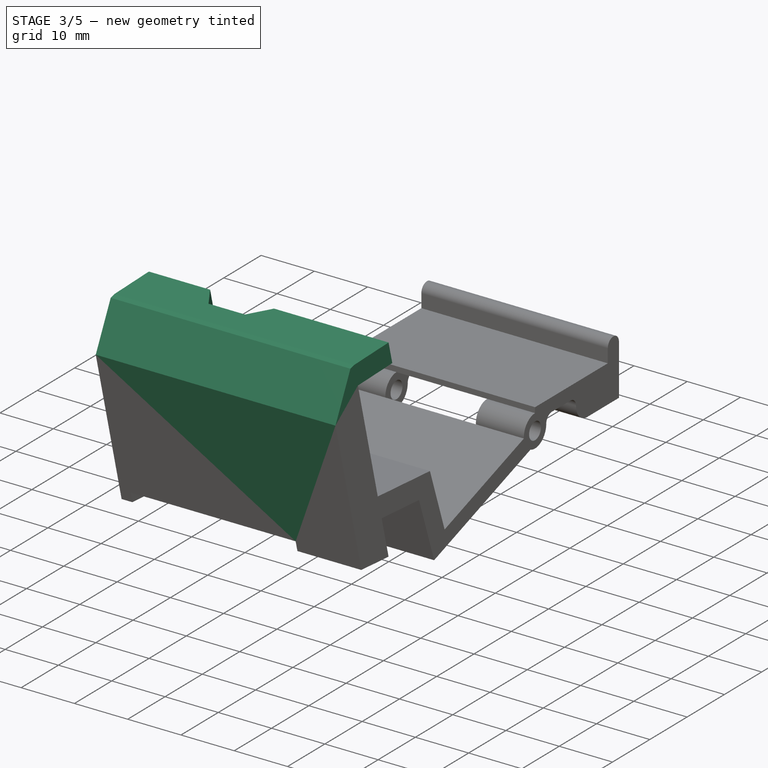
[diagram: stage 3 of 5 — iso view after this stage's code; geometry added in this stage tinted green]
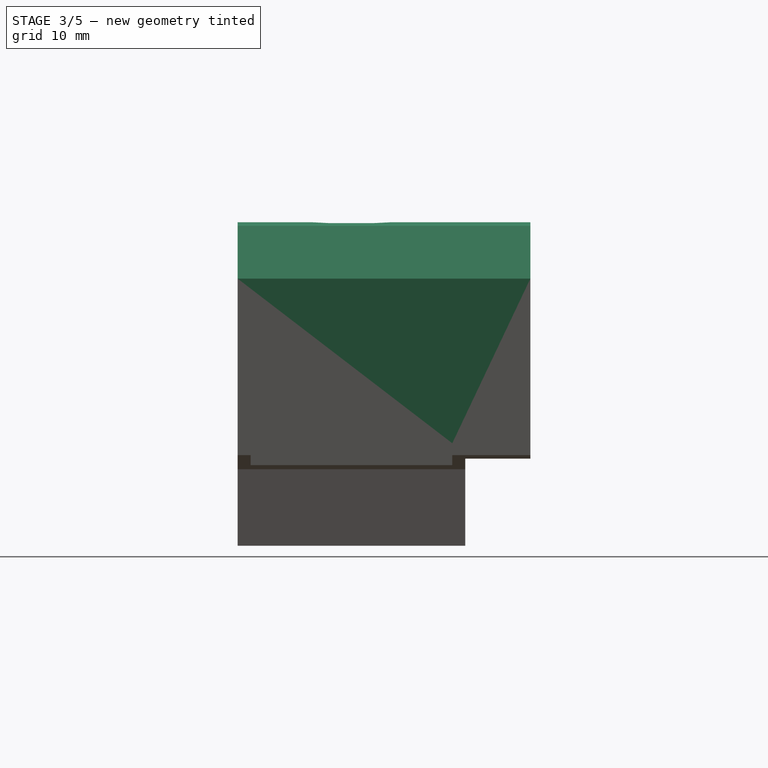
[diagram: stage 3 of 5 — front view after this stage's code; geometry added in this stage tinted green]
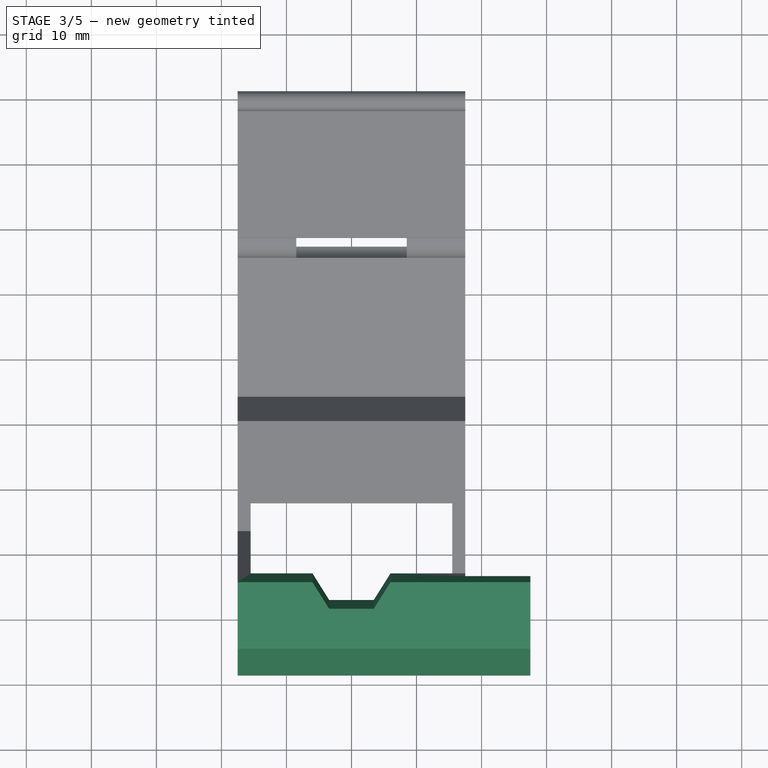
[diagram: stage 3 of 5 — top view after this stage's code; geometry added in this stage tinted green]
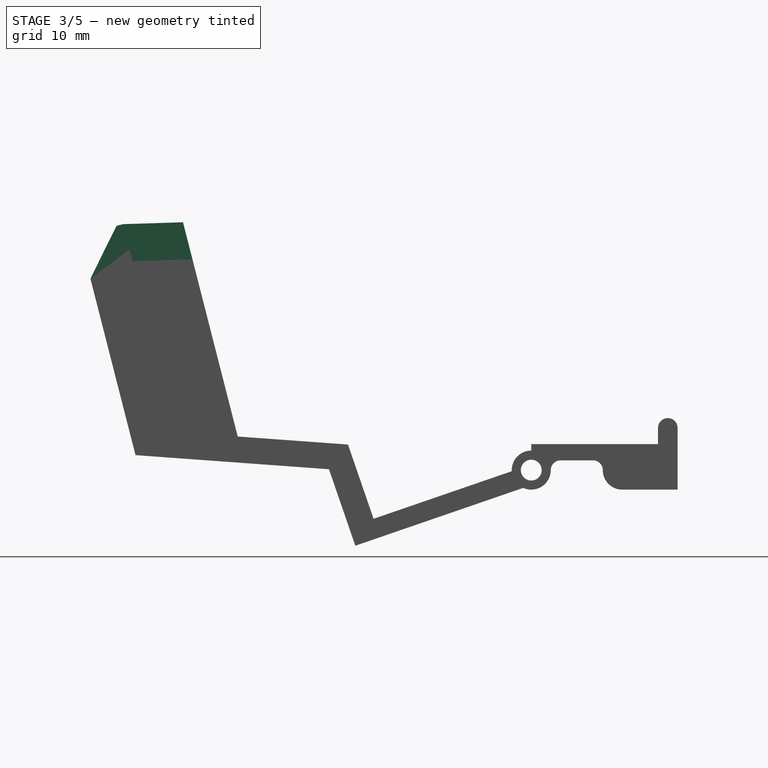
[diagram: stage 3 of 5 — right view after this stage's code; geometry added in this stage tinted green]
FEATURE [PartDesign::Pad] Pad013
  BaseFeature = -> Pad012
  Direction = (0,-0.247506,0.968886)
  Length = 3
  Length2 = 10
  Profile = -> Pad012 [Face22]
  Refine = true
  Suppressed = false
  Type = 0
FEATURE [Sketcher::SketchObject] Sketch027
  ArcFitTolerance = 1e-06
  AttachmentSupport = -> [Pad013]
  ExternalGeometry = -> [Pad013]
  FullyConstrained = true
  MakeInternals = false
  MapMode = 5
  Placement = pos=(-17.5,0,0) rot=(0.57735,-0.57735,-0.57735;2.0944rad)
  sketch-geometry (3):
    g0: LineSegment StartX=-4.92317 StartY=15.9667 StartZ=0 EndX=-8.66341 EndY=37.44 EndZ=0
    g1: LineSegment StartX=-9.40593 StartY=34.5334 StartZ=0 EndX=-8.66341 EndY=37.44 EndZ=0
    g2: LineSegment StartX=-4.92317 StartY=15.9667 StartZ=0 EndX=-9.40593 EndY=34.5334 EndZ=0
  constraints (6):
    c: Coincident(g0,g-4)
    c: Coincident(g0,g-3)
    c: Coincident(g1,g-4)
    c: Coincident(g1,g0)
    c: Coincident(g2,g0)
    c: Coincident(g2,g1)
FEATURE [PartDesign::Pad] Pad014
  BaseFeature = -> Pad013
  Direction = (-1,0,0)
  Length = 10
  Length2 = 10
  Profile = -> Sketch027
  ReferenceAxis = -> Sketch027 [N_Axis]
  Refine = true
  Suppressed = false
  Type = 3
  UpToFace = -> Pad013 [Face44]
FEATURE [Sketcher::SketchObject] Sketch028
  ArcFitTolerance = 1e-06
  AttachmentSupport = -> [Pad014]
  ExternalGeometry = -> [Pad014]
  FullyConstrained = true
  MakeInternals = false
  MapMode = 5
  Placement = pos=(27.5,0,0) rot=(0.57735,0.57735,0.57735;2.0944rad)
  sketch-geometry (3):
    g0: LineSegment StartX=4.92317 StartY=15.9667 StartZ=0 EndX=8.40292 EndY=30.3791 EndZ=0
    g1: LineSegment StartX=8.40292 StartY=30.3791 StartZ=0 EndX=7.3884 EndY=30.12 EndZ=0
    g2: LineSegment StartX=7.3884 StartY=30.12 StartZ=0 EndX=4.92317 EndY=15.9667 EndZ=0
  constraints (7):
    c: Coincident(g0,g-4)
    c: Coincident(g0,g-3)
    c: Coincident(g1,g0)
    c: PointOnObject(g1,g-4)
    c: Coincident(g2,g1)
    c: Coincident(g2,g0)
    c: Perpendicular(g-3,g1)
FEATURE [PartDesign::Pad] Pad015
  BaseFeature = -> Pad014
  Direction = (1,0,0)
  Length = 10
  Length2 = 10
  Profile = -> Sketch028
  ReferenceAxis = -> Sketch028 [N_Axis]
  Refine = true
  Suppressed = false
  Type = 3
  UpToFace = -> Pad014 [Face49]
FEATURE [Sketcher::SketchObject] Sketch029
  ArcFitTolerance = 1e-06
  AttachmentSupport = -> [Pad015]
  ExternalGeometry = -> [Pad015]
  FullyConstrained = true
  MakeInternals = false
  MapMode = 5
  Placement = pos=(17.5,-1.42e-14,2.14e-14) rot=(0.57735,0.57735,0.57735;2.0944rad)
  sketch-geometry (7):
    g0: LineSegment StartX=10.8698 StartY=32.8431 StartZ=0 EndX=16.6831 EndY=34.3281 EndZ=0
    g1: LineSegment StartX=16.6831 StartY=34.3281 StartZ=0 EndX=15.9085 EndY=37.3608 EndZ=0
    g2: LineSegment StartX=15.9085 StartY=37.3608 StartZ=0 EndX=10.298 EndY=35.9275 EndZ=0
    g3: LineSegment [constr] StartX=6.88858 StartY=16.3536 StartZ=0 EndX=10.6498 EndY=37.9475 EndZ=0
    g4: LineSegment StartX=10.8698 StartY=32.8431 StartZ=0 EndX=9.36532 EndY=26.6117 EndZ=0
    g5: LineSegment StartX=9.36532 StartY=26.6117 StartZ=0 EndX=8.95507 EndY=28.2177 EndZ=0
    g6: LineSegment StartX=8.95507 StartY=28.2177 StartZ=0 EndX=10.298 EndY=35.9275 EndZ=0
  constraints (18):
    c: Coincident(g0,g-4)
    c: Coincident(g1,g0)
    c: PointOnObject(g1,g-4)
    c: Coincident(g2,g1)
    c: Coincident(g3,g-8)
    c: PointOnObject(g3,g-3)
    c: Parallel(g3,g-5)
    c: PointOnObject(g2,g3)
    c: Coincident(g0,g-6)
    c: Parallel(g2,g-3)
    c: Coincident(g4,g0)
    c: Coincident(g4,g-6)
    c: Coincident(g5,g4)
    c: PointOnObject(g5,g-7)
    c: Coincident(g6,g5)
    c: Coincident(g6,g2)
    c: Distance(g1,g-4) = 1.87
    c: PointOnObject(g5,g3)
FEATURE [PartDesign::Pocket] Pocket015
  BaseFeature = -> Pad015
  Direction = (-1,-1e-16,-1e-15)
  Length = 0
  Length2 = 5
  Profile = -> Sketch029
  ReferenceAxis = -> Sketch029 [N_Axis]
  Refine = true
  Suppressed = false
  Type = 3
  UpToFace = -> Pad015 [Face33]
FEATURE [Sketcher::SketchObject] Sketch030
  ArcFitTolerance = 1e-06
  AttachmentSupport = -> [Pocket015]
  ExternalGeometry = -> [Pocket015]
  FullyConstrained = true
  MakeInternals = false
  MapMode = 5
  Placement = pos=(-15.5,0,0) rot=(0.57735,0.57735,0.57735;2.0944rad)
  sketch-geometry (3):
    g0: LineSegment StartX=6.88858 StartY=16.3536 StartZ=0 EndX=8.95507 EndY=28.2177 EndZ=0
    g1: LineSegment StartX=8.95507 StartY=28.2177 StartZ=0 EndX=9.36532 EndY=26.6117 EndZ=0
    g2: LineSegment StartX=6.88858 StartY=16.3536 StartZ=0 EndX=9.36532 EndY=26.6117 EndZ=0
  constraints (6):
    c: Coincident(g0,g-5)
    c: Coincident(g0,g-3)
    c: Coincident(g1,g0)
    c: Coincident(g1,g-5)
    c: Coincident(g2,g0)
    c: Coincident(g2,g1)
FEATURE [PartDesign::Pocket] Pocket016
  BaseFeature = -> Pocket015
  Direction = (-1,0,0)
  Length = 0
  Length2 = 5
  Profile = -> Sketch030
  ReferenceAxis = -> Sketch030 [N_Axis]
  Refine = true
  Suppressed = false
  Type = 3
  UpToFace = -> Pocket015 [Face36]
FEATURE [Sketcher::SketchObject] Sketch031
  ArcFitTolerance = 1e-06
  AttachmentSupport = -> [Pocket016]
  ExternalGeometry = -> [Pocket016]
  FullyConstrained = true
  MakeInternals = false
  MapMode = 5
  Placement = pos=(17.5,-1.42e-14,2.14e-14) rot=(0.57735,0.57735,0.57735;2.0944rad)
  sketch-geometry (3):
    g0: LineSegment StartX=7.3884 StartY=30.12 StartZ=0 EndX=5.71111 EndY=36.6859 EndZ=0
    g1: LineSegment StartX=5.71111 StartY=36.6859 StartZ=0 EndX=8.66341 EndY=37.44 EndZ=0
    g2: LineSegment StartX=7.3884 StartY=30.12 StartZ=0 EndX=8.66341 EndY=37.44 EndZ=0
  constraints (7):
    c: Coincident(g0,g-5)
    c: Coincident(g1,g0)
    c: Coincident(g1,g-4)
    c: Parallel(g-6,g1)
    c: Parallel(g-7,g0)
    c: Coincident(g2,g0)
    c: Coincident(g2,g1)
FEATURE [PartDesign::Pad] Pad016
  BaseFeature = -> Pocket016
  Direction = (1,1e-16,1e-15)
  Length = 10
  Length2 = 10
  Profile = -> Sketch031
  ReferenceAxis = -> Sketch031 [N_Axis]
  Refine = true
  Suppressed = false
  Type = 3
  UpToFace = -> Pocket016 [Face2]
FEATURE [Sketcher::SketchObject] Sketch032
  ArcFitTolerance = 1e-06
  AttachmentSupport = -> [Pad016]
  ExternalGeometry = -> [Pad016]
  FullyConstrained = true
  MakeInternals = false
  MapMode = 5
  Placement = pos=(-17.5,0,0) rot=(0.57735,-0.57735,-0.57735;2.0944rad)
  sketch-geometry (4):
    g0: LineSegment StartX=-4.92317 StartY=15.9667 StartZ=0 EndX=-1.70559 EndY=28.5622 EndZ=0
    g1: LineSegment StartX=-1.70559 StartY=28.5622 StartZ=0 EndX=-5.71111 EndY=36.6859 EndZ=0
    g2: LineSegment StartX=-4.92317 StartY=15.9667 StartZ=0 EndX=-7.3884 EndY=30.12 EndZ=0
    g3: LineSegment StartX=-7.3884 StartY=30.12 StartZ=0 EndX=-5.71111 EndY=36.6859 EndZ=0
  constraints (9):
    c: Coincident(g0,g-5)
    c: Coincident(g1,g0)
    c: Coincident(g1,g-4)
    c: Coincident(g2,g0)
    c: Coincident(g2,g-4)
    c: Coincident(g3,g2)
    c: Coincident(g3,g1)
    c: Parallel(g3,g0)
    c: Distance(g0,g0) = 13
FEATURE [PartDesign::Pad] Pad017
  BaseFeature = -> Pad016
  Direction = (-1,0,0)
  Length = 10
  Length2 = 10
  Profile = -> Sketch032
  ReferenceAxis = -> Sketch032 [N_Axis]
  Refine = true
  Suppressed = false
  Type = 3
  UpToFace = -> Pad016 [Face51]
FEATURE [Sketcher::SketchObject] Sketch033
  ArcFitTolerance = 1e-06
  AttachmentSupport = -> [Pad017]
  ExternalGeometry = -> [Pad017]
  FullyConstrained = true
  MakeInternals = false
  MapMode = 5
  Placement = pos=(17.5,-6.5e-15,1.75e-14) rot=(0.57735,0.57735,0.57735;2.0944rad)
  sketch-geometry (6):
    g0: LineSegment StartX=8.40292 StartY=30.3791 StartZ=0 EndX=6.72564 EndY=36.945 EndZ=0
    g1: LineSegment StartX=6.72564 StartY=36.945 StartZ=0 EndX=5.71111 EndY=36.6859 EndZ=0
    g2: LineSegment StartX=5.71111 StartY=36.6859 StartZ=0 EndX=1.70559 EndY=28.5622 EndZ=0
    g3: LineSegment StartX=1.70559 StartY=28.5622 StartZ=0 EndX=4.92317 EndY=15.9667 EndZ=0
    g4: LineSegment StartX=4.92317 StartY=15.9667 StartZ=0 EndX=7.3884 EndY=30.12 EndZ=0
    g5: LineSegment StartX=7.3884 StartY=30.12 StartZ=0 EndX=8.40292 EndY=30.3791 EndZ=0
  constraints (13):
    c: Coincident(g0,g-4)
    c: PointOnObject(g0,g-3)
    c: Coincident(g1,g0)
    c: Coincident(g1,g-3)
    c: Coincident(g2,g1)
    c: Coincident(g2,g-5)
    c: Coincident(g3,g2)
    c: Coincident(g3,g-6)
    c: Coincident(g4,g3)
    c: Coincident(g4,g-6)
    c: Coincident(g5,g4)
    c: Coincident(g5,g0)
    c: Parallel(g0,g3)
FEATURE [PartDesign::Pad] Pad018
  BaseFeature = -> Pad017
  Direction = (1,1e-16,1e-15)
  Length = 10
  Length2 = 10
  Profile = -> Sketch033
  ReferenceAxis = -> Sketch033 [N_Axis]
  Refine = true
  Suppressed = false
  Type = 3
  UpToFace = -> Pad017 [Face32]
FEATURE [Sketcher::SketchObject] Sketch034
  ArcFitTolerance = 1e-06
  AttachmentSupport = -> [Pad018]
  ExternalGeometry = -> [Pad018]
  FullyConstrained = true
  MakeInternals = false
  MapMode = 5
  Placement = pos=(-15.5,0,0) rot=(0.57735,0.57735,0.57735;2.0944rad)
  sketch-geometry (4):
    g0: LineSegment StartX=6.88858 StartY=16.3536 StartZ=0 EndX=3.82636 EndY=28.3409 EndZ=0
    g1: LineSegment StartX=3.82636 StartY=28.3409 StartZ=0 EndX=7.17357 EndY=35.1294 EndZ=0
    g2: LineSegment StartX=7.17357 StartY=35.1294 StartZ=0 EndX=10.298 EndY=35.9275 EndZ=0
    g3: LineSegment StartX=10.298 StartY=35.9275 StartZ=0 EndX=6.88858 EndY=16.3536 EndZ=0
  constraints (10):
    c: Coincident(g0,g-3)
    c: Coincident(g1,g0)
    c: Coincident(g2,g1)
    c: Coincident(g2,g-4)
    c: Coincident(g3,g2)
    c: Coincident(g3,g0)
    c: Parallel(g0,g-6)
    c: Parallel(g1,g-5)
    c: Parallel(g2,g-4)
    c: Distance(g0,g-5) = 2
FEATURE [PartDesign::Pocket] Pocket017
  BaseFeature = -> Pad018
  Direction = (-1,0,0)
  Length = 0
  Length2 = 5
  Profile = -> Sketch034
  ReferenceAxis = -> Sketch034 [N_Axis]
  Refine = true
  Suppressed = false
  Type = 3
  UpToFace = -> Pad018 [Face1]
FEATURE [PartDesign::Pad] Pad019
  BaseFeature = -> Pocket017
  Direction = (-1,4e-16,-1e-15)
  Length = 10
  Length2 = 10
  Profile = -> Pocket017 [Face12]
  Refine = true
  Suppressed = false
  Type = 3
  UpToFace = -> Pocket017 [Face17]
FEATURE [Sketcher::SketchObject] Sketch035
  ArcFitTolerance = 1e-06
  AttachmentSupport = -> [Pad019]
  ExternalGeometry = -> [Pad019]
  FullyConstrained = true
  MakeInternals = false
  MapMode = 5
  Placement = pos=(17.5,-6.5e-15,1.75e-14) rot=(0.57735,0.57735,0.57735;2.0944rad)
  sketch-geometry (4):
    g0: LineSegment StartX=15.9406 StartY=37.2348 StartZ=0 EndX=6.72564 EndY=36.945 EndZ=0
    g1: LineSegment StartX=7.18847 StartY=35.1332 StartZ=0 EndX=16.4035 EndY=35.423 EndZ=0
    g2: LineSegment StartX=16.4035 StartY=35.423 StartZ=0 EndX=15.9406 EndY=37.2348 EndZ=0
    g3: LineSegment StartX=6.72564 StartY=36.945 StartZ=0 EndX=7.18847 EndY=35.1332 EndZ=0
  constraints (10):
    c: PointOnObject(g0,g-5)
    c: Coincident(g0,g-4)
    c: Coincident(g1,g-3)
    c: PointOnObject(g1,g-5)
    c: Coincident(g2,g1)
    c: Coincident(g2,g0)
    c: Coincident(g3,g0)
    c: Coincident(g3,g1)
    c: Parallel(g0,g1)
    c: Distance(g0,g-6) = 2
FEATURE [PartDesign::Pad] Pad020
  BaseFeature = -> Pad019
  Direction = (1,1e-16,1e-15)
  Length = 10
  Length2 = 10
  Profile = -> Sketch035
  ReferenceAxis = -> Sketch035 [N_Axis]
  Refine = true
  Suppressed = false
  Type = 3
  UpToFace = -> Pad019 [Face12]
FEATURE [Sketcher::SketchObject] Sketch036
  ArcFitTolerance = 1e-06
  AttachmentSupport = -> [Pad020]
  ExternalGeometry = -> [Pad020]
  FullyConstrained = true
  MakeInternals = false
  MapMode = 5
  Placement = pos=(-1.16e-14,-8.44761,33.0689) rot=(1,0,0;0.250106rad)
  sketch-geometry (4):
    g0: LineSegment StartX=3.42857 StartY=20.6605 StartZ=0 EndX=6 EndY=24.6605 EndZ=0
    g1: LineSegment StartX=6 StartY=24.6605 StartZ=0 EndX=-6 EndY=24.6605 EndZ=0
    g2: LineSegment StartX=-3.42857 StartY=20.6605 StartZ=0 EndX=-6 EndY=24.6605 EndZ=0
    g3: LineSegment StartX=-3.42857 StartY=20.6605 StartZ=0 EndX=3.42857 EndY=20.6605 EndZ=0
  constraints (8):
    c: Coincident(g0,g-5)
    c: Coincident(g0,g-5)
    c: Coincident(g1,g0)
    c: Coincident(g1,g-6)
    c: Coincident(g2,g-6)
    c: Coincident(g2,g1)
    c: Coincident(g3,g2)
    c: Coincident(g3,g0)
FEATURE [PartDesign::Pocket] Pocket018
  BaseFeature = -> Pad020
  Direction = (0,0.247506,-0.968886)
  Length = 5
  Length2 = 5
  Profile = -> Sketch036
  ReferenceAxis = -> Sketch036 [N_Axis]
  Refine = true
  Suppressed = false
  Type = 0
FEATURE [Sketcher::SketchObject] Sketch037
  ArcFitTolerance = 1e-06
  AttachmentSupport = -> [Pocket018]
  ExternalGeometry = -> [Pocket018]
  FullyConstrained = true
  MakeInternals = false
  MapMode = 5
  Placement = pos=(17.5,7.9e-15,-4.2e-14) rot=(0.57735,0.57735,0.57735;2.0944rad)
  sketch-geometry (3):
    g0: LineSegment StartX=6.72564 StartY=36.945 StartZ=0 EndX=15.4456 EndY=39.1726 EndZ=0
    g1: LineSegment StartX=15.9406 StartY=37.2348 StartZ=0 EndX=6.72564 EndY=36.945 EndZ=0
    g2: LineSegment StartX=15.9406 StartY=37.2348 StartZ=0 EndX=15.4456 EndY=39.1726 EndZ=0
  constraints (6):
    c: Coincident(g0,g-3)
    c: Coincident(g0,g-4)
    c: Coincident(g1,g-5)
    c: Coincident(g1,g-3)
    c: Coincident(g2,g1)
    c: Coincident(g2,g0)
FEATURE [PartDesign::Pocket] Pocket019
  BaseFeature = -> Pocket018
  Direction = (-1,-1e-16,2.3e-15)
  Length = 5
  Length2 = 5
  Profile = -> Sketch037
  ReferenceAxis = -> Sketch037 [N_Axis]
  Refine = true
  Suppressed = false
  Type = 1
FEATURE [Sketcher::SketchObject] Sketch038
  ArcFitTolerance = 1e-06
  AttachmentSupport = -> [Pocket019]
  ExternalGeometry = -> [Pocket019]
  FullyConstrained = true
  MakeInternals = false
  MapMode = 5
  Placement = pos=(27.5,0,0) rot=(0.57735,0.57735,0.57735;2.0944rad)
  sketch-geometry (8):
    g0: LineSegment StartX=1.70559 StartY=28.5622 StartZ=0 EndX=5.71111 EndY=36.6859 EndZ=0
    g1: LineSegment StartX=5.71111 StartY=36.6859 StartZ=0 EndX=6.72564 EndY=36.945 EndZ=0
    g2: LineSegment StartX=6.72564 StartY=36.945 StartZ=0 EndX=15.9406 EndY=37.2348 EndZ=0
    g3: LineSegment StartX=15.9406 StartY=37.2348 StartZ=0 EndX=14.9506 EndY=41.1103 EndZ=0
    g4: LineSegment StartX=14.9506 StartY=41.1103 StartZ=0 EndX=5.73561 EndY=40.8206 EndZ=0
    g5: LineSegment StartX=5.73561 StartY=40.8206 StartZ=0 EndX=4.72108 EndY=40.5614 EndZ=0
    g6: LineSegment StartX=4.72108 StartY=40.5614 StartZ=0 EndX=0.715566 EndY=32.4378 EndZ=0
    g7: LineSegment StartX=0.715566 StartY=32.4378 StartZ=0 EndX=1.70559 EndY=28.5622 EndZ=0
  constraints (20):
    c: Coincident(g0,g-6)
    c: Coincident(g0,g-4)
    c: Coincident(g1,g0)
    c: Coincident(g1,g-5)
    c: Coincident(g2,g1)
    c: Coincident(g2,g-5)
    c: Coincident(g3,g2)
    c: Coincident(g4,g3)
    c: Coincident(g5,g4)
    c: Coincident(g6,g5)
    c: Coincident(g7,g6)
    c: Coincident(g7,g0)
    c: Parallel(g3,g-7)
    c: Parallel(g7,g-6)
    c: Equal(g5,g1)
    c: Equal(g4,g2)
    c: Equal(g6,g0)
    c: Parallel(g4,g2)
    c: Parallel(g5,g1)
    c: Distance(g3,g3) = 4
FEATURE [PartDesign::Pad] Pad021
  BaseFeature = -> Pocket019
  Direction = (1,0,0)
  Length = 10
  Length2 = 10
  Profile = -> Sketch038
  ReferenceAxis = -> Sketch038 [N_Axis]
  Refine = true
  Suppressed = false
  Type = 3
  UpToFace = -> Pocket019 [Face12]
FEATURE [Sketcher::SketchObject] Sketch039
  ArcFitTolerance = 1e-06
  AttachmentSupport = -> [Pad021]
  ExternalGeometry = -> [Pad021]
  FullyConstrained = true
  MakeInternals = false
  MapMode = 5
  Placement = pos=(0,-9.43764,36.9445) rot=(1,0,0;0.250106rad)
  sketch-geometry (4):
    g0: LineSegment StartX=-3.42857 StartY=20.6605 StartZ=0 EndX=3.42857 EndY=20.6605 EndZ=0
    g1: LineSegment StartX=6 StartY=24.6605 StartZ=0 EndX=-6 EndY=24.6605 EndZ=0
    g2: LineSegment StartX=-3.42857 StartY=20.6605 StartZ=0 EndX=-6 EndY=24.6605 EndZ=0
    g3: LineSegment StartX=3.42857 StartY=20.6605 StartZ=0 EndX=6 EndY=24.6605 EndZ=0
  constraints (8):
    c: Coincident(g0,g-3)
    c: Coincident(g0,g-4)
    c: Coincident(g1,g-4)
    c: Coincident(g1,g-3)
    c: Coincident(g2,g0)
    c: Coincident(g2,g1)
    c: Coincident(g3,g0)
    c: Coincident(g3,g1)
FEATURE [PartDesign::Pocket] Pocket020
  BaseFeature = -> Pad021
  Direction = (0,0.247506,-0.968886)
  Length = 6
  Length2 = 5
  Profile = -> Sketch039
  ReferenceAxis = -> Sketch039 [N_Axis]
  Refine = true
  Suppressed = false
  Type = 0
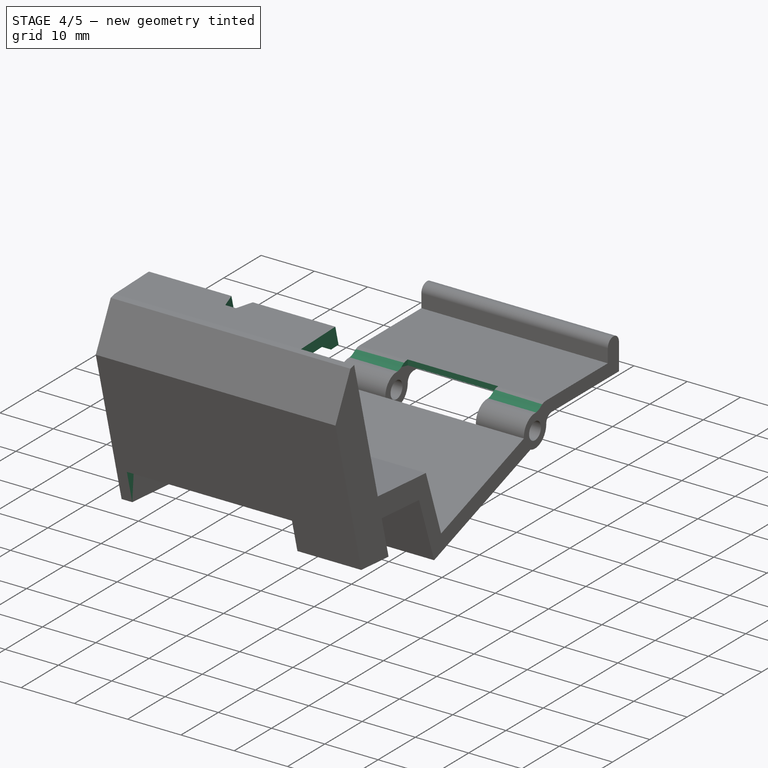
[diagram: stage 4 of 5 — iso view after this stage's code; geometry added in this stage tinted green]
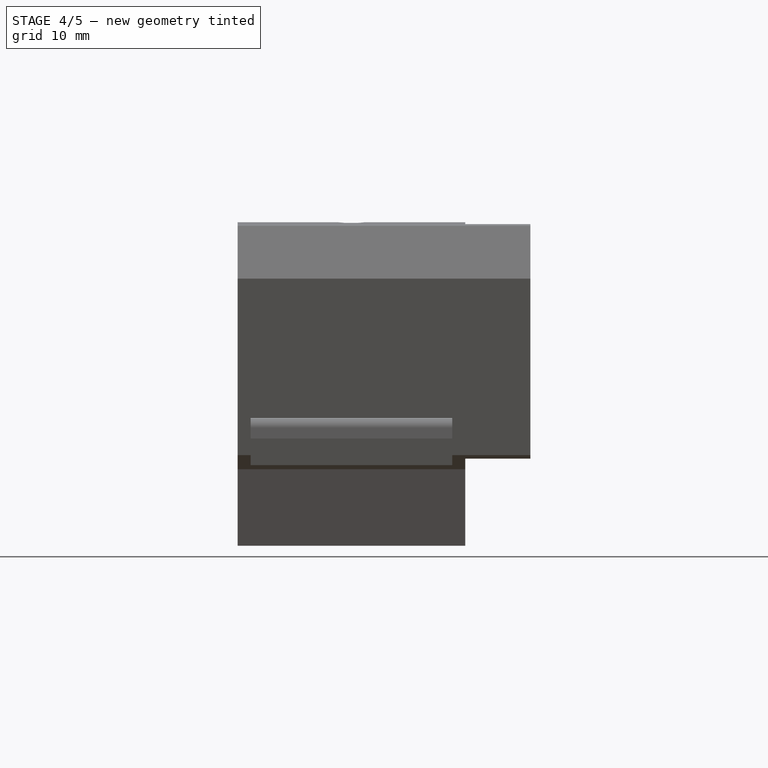
[diagram: stage 4 of 5 — front view after this stage's code; geometry added in this stage tinted green]
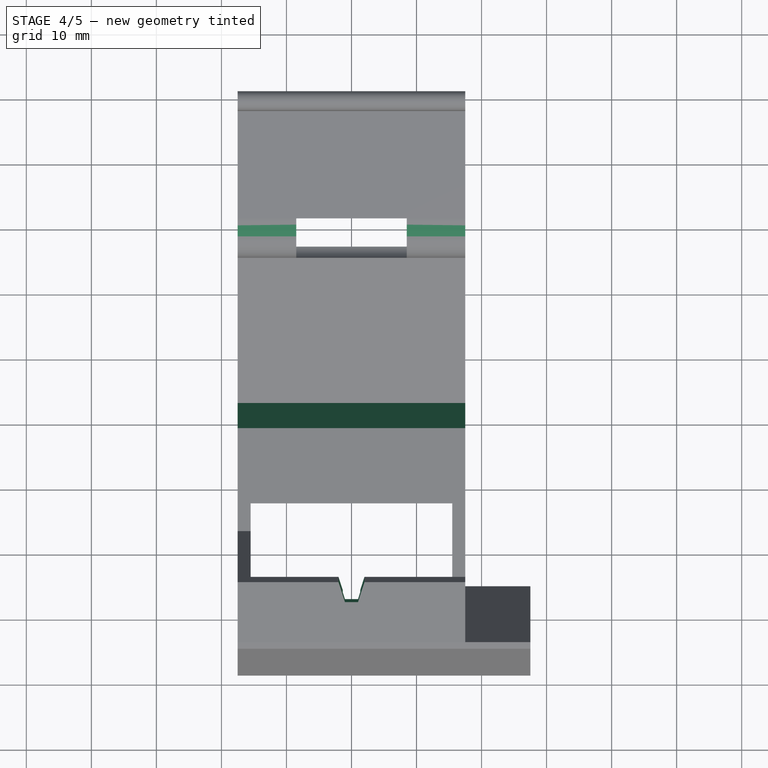
[diagram: stage 4 of 5 — top view after this stage's code; geometry added in this stage tinted green]
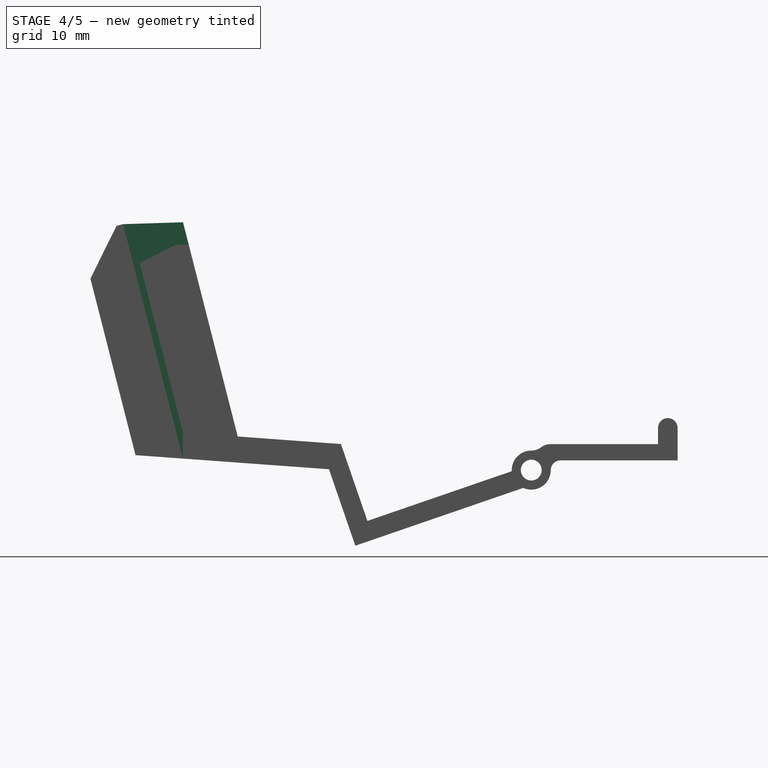
[diagram: stage 4 of 5 — right view after this stage's code; geometry added in this stage tinted green]
FEATURE [Sketcher::SketchObject] Sketch040
  ArcFitTolerance = 1e-06
  AttachmentSupport = -> [Pocket020]
  ExternalGeometry = -> [Pocket020]
  FullyConstrained = true
  MakeInternals = false
  MapMode = 5
  Placement = pos=(27.5,0,0) rot=(0.57735,0.57735,0.57735;2.0944rad)
  sketch-geometry (4):
    g0: LineSegment StartX=16.4035 StartY=35.423 StartZ=0 EndX=7.18847 EndY=35.1332 EndZ=0
    g1: LineSegment StartX=16.4035 StartY=35.423 StartZ=0 EndX=15.4456 EndY=39.1726 EndZ=0
    g2: LineSegment StartX=15.4456 StartY=39.1726 StartZ=0 EndX=6.23062 EndY=38.8828 EndZ=0
    g3: LineSegment StartX=7.18847 StartY=35.1332 StartZ=0 EndX=6.23062 EndY=38.8828 EndZ=0
  constraints (11):
    c: Coincident(g0,g-3)
    c: PointOnObject(g0,g-5)
    c: Coincident(g1,g0)
    c: PointOnObject(g1,g-4)
    c: Coincident(g2,g1)
    c: PointOnObject(g2,g-5)
    c: Parallel(g0,g2)
    c: Coincident(g3,g0)
    c: Coincident(g3,g2)
    c: Parallel(g0,g-6)
    c: Distance(g1,g-4) = 2
FEATURE [PartDesign::Pocket] Pocket021
  BaseFeature = -> Pocket020
  Direction = (-1,0,0)
  Length = 0
  Length2 = 5
  Profile = -> Sketch040
  ReferenceAxis = -> Sketch040 [N_Axis]
  Refine = true
  Suppressed = false
  Type = 3
  UpToFace = -> Pocket020 [Face16]
FEATURE [Sketcher::SketchObject] Sketch041
  ArcFitTolerance = 1e-06
  AttachmentSupport = -> [Pocket021]
  ExternalGeometry = -> [Pocket021]
  FullyConstrained = true
  MakeInternals = false
  MapMode = 5
  Placement = pos=(-15.5,0,0) rot=(0.57735,0.57735,0.57735;2.0944rad)
  sketch-geometry (4):
    g0: LineSegment StartX=6.23062 StartY=38.8828 StartZ=0 EndX=2.87296 EndY=32.0731 EndZ=0
    g1: LineSegment StartX=3.82636 StartY=28.3409 StartZ=0 EndX=2.87296 EndY=32.0731 EndZ=0
    g2: LineSegment StartX=3.82636 StartY=28.3409 StartZ=0 EndX=7.18847 EndY=35.1332 EndZ=0
    g3: LineSegment StartX=7.18847 StartY=35.1332 StartZ=0 EndX=6.23062 EndY=38.8828 EndZ=0
  constraints (9):
    c: Coincident(g0,g-4)
    c: Coincident(g1,g-5)
    c: Coincident(g1,g0)
    c: Parallel(g-6,g0)
    c: Parallel(g1,g-3)
    c: Coincident(g2,g1)
    c: Coincident(g2,g-4)
    c: Coincident(g3,g2)
    c: Coincident(g3,g0)
FEATURE [PartDesign::Pocket] Pocket022
  BaseFeature = -> Pocket021
  Direction = (-1,0,0)
  Length = 0
  Length2 = 5
  Profile = -> Sketch041
  ReferenceAxis = -> Sketch041 [N_Axis]
  Refine = true
  Suppressed = false
  Type = 3
  UpToFace = -> Pocket021 [Face1]
FEATURE [Sketcher::SketchObject] Sketch042
  ArcFitTolerance = 1e-06
  AttachmentSupport = -> [Pocket022]
  ExternalGeometry = -> [Pocket022]
  FullyConstrained = true
  MakeInternals = false
  MapMode = 5
  Placement = pos=(0,10.3883,2.65373) rot=(0,0.61339,0.78978;3.14159rad)
  sketch-geometry (4):
    g0: LineSegment StartX=15.5 StartY=5.13088 StartZ=0 EndX=15.5 EndY=15.1309 EndZ=0
    g1: LineSegment StartX=15.5 StartY=15.1309 StartZ=0 EndX=-15.5 EndY=15.1309 EndZ=0
    g2: LineSegment StartX=-15.5 StartY=15.1309 StartZ=0 EndX=-15.5 EndY=5.13088 EndZ=0
    g3: LineSegment StartX=-15.5 StartY=5.13088 StartZ=0 EndX=15.5 EndY=5.13088 EndZ=0
  constraints (11):
    c: Coincident(g0,g1)
    c: Coincident(g1,g2)
    c: Coincident(g2,g3)
    c: Coincident(g3,g0)
    c: Vertical(g0)
    c: Vertical(g2)
    c: Horizontal(g1)
    c: Horizontal(g3)
    c: Coincident(g0,g-3)
    c: PointOnObject(g1,g-4)
    c: DistanceY(g2,g2) = 10
FEATURE [PartDesign::Pocket] Pocket023
  BaseFeature = -> Pocket022
  Direction = (0,-0.968886,-0.247506)
  Length = 5
  Length2 = 5
  Profile = -> Sketch042
  ReferenceAxis = -> Sketch042 [N_Axis]
  Refine = true
  Suppressed = false
  Type = 0
FEATURE [Sketcher::SketchObject] Sketch043
  ArcFitTolerance = 1e-06
  AttachmentSupport = -> [Pocket023]
  ExternalGeometry = -> [Pocket023]
  FullyConstrained = true
  MakeInternals = false
  MapMode = 5
  Placement = pos=(6.005e-13,38.1809,13.1467) rot=(0,0.580703,0.814116;3.14159rad)
  sketch-geometry (4):
    g0: LineSegment StartX=17.5 StartY=-18.6509 StartZ=0 EndX=17.5 EndY=4.89906 EndZ=0
    g1: LineSegment StartX=17.5 StartY=4.89906 StartZ=0 EndX=-17.5 EndY=4.89906 EndZ=0
    g2: LineSegment StartX=-17.5 StartY=4.89906 StartZ=0 EndX=-17.5 EndY=-18.6509 EndZ=0
    g3: LineSegment StartX=-17.5 StartY=-18.6509 StartZ=0 EndX=17.5 EndY=-18.6509 EndZ=0
  constraints (10):
    c: Coincident(g0,g1)
    c: Coincident(g1,g2)
    c: Coincident(g2,g3)
    c: Coincident(g3,g0)
    c: Vertical(g0)
    c: Vertical(g2)
    c: Horizontal(g1)
    c: Coincident(g0,g-3)
    c: Coincident(g2,g-3)
    c: DistanceY(g0,g0) = 23.55
FEATURE [PartDesign::Pocket] Pocket024
  BaseFeature = -> Pocket023
  Direction = (-1.49e-14,-0.945519,-0.325568)
  Length = 1
  Length2 = 5
  Profile = -> Sketch043
  ReferenceAxis = -> Sketch043 [N_Axis]
  Refine = true
  Suppressed = false
  Type = 0
FEATURE [Sketcher::SketchObject] Sketch044
  ArcFitTolerance = 1e-06
  AttachmentSupport = -> [Pocket024]
  ExternalGeometry = -> [Pocket024]
  FullyConstrained = true
  MakeInternals = false
  MapMode = 5
  Placement = pos=(-17.5,0,0) rot=(0.57735,-0.57735,-0.57735;2.0944rad)
  sketch-geometry (5):
    g0: ArcOfCircle CenterX=-68.5 CenterY=8.5 CenterZ=0 NormalX=0 NormalY=0 NormalZ=1 AngleXU=0 Radius=2.5 StartAngle=4.06889 EndAngle=4.71239
    g1: ArcOfCircle CenterX=-71.5 CenterY=4.5 CenterZ=0 NormalX=0 NormalY=0 NormalZ=1 AngleXU=0 Radius=2.5 StartAngle=0.927295 EndAngle=1.5708
    g2: LineSegment StartX=-68.5 StartY=6 StartZ=0 EndX=-68.5 EndY=7.9 EndZ=0
    g3: LineSegment StartX=-68.5 StartY=7.9 StartZ=0 EndX=-71.5 EndY=7.9 EndZ=0
    g4: LineSegment StartX=-71.5 StartY=7 StartZ=0 EndX=-71.5 EndY=7.9 EndZ=0
  constraints (13):
    c: Vertical(g2)
    c: Coincident(g3,g2)
    c: Horizontal(g3)
    c: Coincident(g4,g1)
    c: Coincident(g4,g3)
    c: Vertical(g4)
    c: Tangent(g1,g0) = 1.5708
    c: Tangent(g0,g-3) = 1.5708
    c: Tangent(g1,g-4) = 1.5708
    c: Distance(g3,g3) = 3
    c: Coincident(g2,g0)
    c: DistanceY(g2,g2) = 1.9
    c: Equal(g0,g1)
FEATURE [PartDesign::Pocket] Pocket025
  BaseFeature = -> Pocket024
  Direction = (1,0,0)
  Length = 5
  Length2 = 5
  Profile = -> Sketch044
  ReferenceAxis = -> Sketch044 [N_Axis]
  Refine = true
  Suppressed = false
  Type = 1
FEATURE [Sketcher::SketchObject] Sketch045
  ArcFitTolerance = 1e-06
  AttachmentSupport = -> [Pocket025]
  ExternalGeometry = -> [Pocket025]
  FullyConstrained = true
  MakeInternals = false
  MapMode = 5
  Placement = pos=(8.5,0,0) rot=(0.57735,-0.57735,-0.57735;2.0944rad)
  sketch-geometry (4):
    g0: LineSegment StartX=-68.5 StartY=6 StartZ=0 EndX=-68.5 EndY=7.4 EndZ=0
    g1: LineSegment StartX=-68.5 StartY=7.4 StartZ=0 EndX=-71.5 EndY=7.4 EndZ=0
    g2: LineSegment StartX=-71.5 StartY=7.4 StartZ=0 EndX=-71.5 EndY=6 EndZ=0
    g3: LineSegment StartX=-71.5 StartY=6 StartZ=0 EndX=-68.5 EndY=6 EndZ=0
  constraints (11):
    c: Coincident(g0,g1)
    c: Coincident(g1,g2)
    c: Coincident(g2,g3)
    c: Coincident(g3,g0)
    c: Vertical(g0)
    c: Vertical(g2)
    c: Horizontal(g1)
    c: Horizontal(g3)
    c: Coincident(g0,g-4)
    c: Distance(g3,g3) = 3
    c: DistanceY(g2,g2) = 1.4
FEATURE [PartDesign::Pocket] Pocket026
  BaseFeature = -> Pocket025
  Direction = (1,0,0)
  Length = 0
  Length2 = 5
  Profile = -> Sketch045
  ReferenceAxis = -> Sketch045 [N_Axis]
  Refine = true
  Suppressed = false
  Type = 3
  UpToFace = -> Pocket025 [Face38]
FEATURE [Sketcher::SketchObject] Sketch046
  ArcFitTolerance = 1e-06
  AttachmentSupport = -> [Pocket026]
  ExternalGeometry = -> [Pocket026]
  FullyConstrained = true
  MakeInternals = false
  MapMode = 5
  Placement = pos=(-17.5,0,0) rot=(0.57735,-0.57735,-0.57735;2.0944rad)
  sketch-geometry (4):
    g0: LineSegment StartX=-78 StartY=4.5 StartZ=0 EndX=-91 EndY=4.5 EndZ=0
    g1: LineSegment StartX=-91 StartY=4.5 StartZ=0 EndX=-91 EndY=0 EndZ=0
    g2: LineSegment StartX=-91 StartY=0 StartZ=0 EndX=-78 EndY=0 EndZ=0
    g3: LineSegment StartX=-78 StartY=0 StartZ=0 EndX=-78 EndY=4.5 EndZ=0
  constraints (10):
    c: Coincident(g0,g1)
    c: Coincident(g1,g2)
    c: Coincident(g2,g3)
    c: Coincident(g3,g0)
    c: Horizontal(g0)
    c: Horizontal(g2)
    c: Vertical(g1)
    c: Vertical(g3)
    c: Coincident(g0,g-4)
    c: Coincident(g1,g-3)
FEATURE [PartDesign::Pocket] Pocket027
  BaseFeature = -> Pocket026
  Direction = (1,0,0)
  Length = 5
  Length2 = 5
  Profile = -> Sketch046
  ReferenceAxis = -> Sketch046 [N_Axis]
  Refine = true
  Suppressed = false
  Type = 1
FEATURE [PartDesign::Pad] Pad022
  BaseFeature = -> Pocket027
  Direction = (0,0.247506,-0.968886)
  Length = 6
  Length2 = 10
  Profile = -> Pocket027 [Face9]
  Refine = true
  Suppressed = false
  Type = 0
FEATURE [Sketcher::SketchObject] Sketch047
  ArcFitTolerance = 1e-06
  AttachmentSupport = -> [Pad022]
  ExternalGeometry = -> [Pad022]
  FullyConstrained = true
  MakeInternals = false
  MapMode = 5
  Placement = pos=(27.5,0,0) rot=(0.57735,0.57735,0.57735;2.0944rad)
  sketch-geometry (4):
    g0: LineSegment StartX=6.23062 StartY=38.8828 StartZ=0 EndX=5.73561 EndY=40.8206 EndZ=0
    g1: LineSegment StartX=6.23062 StartY=38.8828 StartZ=0 EndX=15.4456 EndY=39.1726 EndZ=0
    g2: LineSegment StartX=15.4456 StartY=39.1726 StartZ=0 EndX=14.9506 EndY=41.1103 EndZ=0
    g3: LineSegment StartX=14.9506 StartY=41.1103 StartZ=0 EndX=5.73561 EndY=40.8206 EndZ=0
  constraints (8):
    c: Coincident(g0,g-3)
    c: Coincident(g0,g-4)
    c: Coincident(g1,g0)
    c: Coincident(g1,g-5)
    c: Coincident(g2,g1)
    c: Coincident(g2,g-5)
    c: Coincident(g3,g2)
    c: Coincident(g3,g0)
FEATURE [PartDesign::Pocket] Pocket028
  BaseFeature = -> Pad022
  Direction = (-1,0,0)
  Length = 0
  Length2 = 5
  Profile = -> Sketch047
  ReferenceAxis = -> Sketch047 [N_Axis]
  Refine = true
  Suppressed = false
  Type = 3
  UpToFace = -> Pad022 [Face17]
FEATURE [PartDesign::Pad] Pad023
  BaseFeature = -> Pocket028
  Direction = (1,0,-4e-16)
  Length = 27
  Length2 = 10
  Profile = -> Pocket028 [Face42]
  Refine = true
  Reversed = true
  Suppressed = false
  Type = 0
FEATURE [Sketcher::SketchObject] Sketch048
  ArcFitTolerance = 1e-06
  AttachmentSupport = -> [Pad023]
  ExternalGeometry = -> [Pad023]
  FullyConstrained = true
  MakeInternals = false
  MapMode = 5
  Placement = pos=(0,-9.43764,36.9445) rot=(1,0,0;0.250106rad)
  sketch-geometry (4):
    g0: LineSegment StartX=-2 StartY=24.6605 StartZ=0 EndX=2 EndY=24.6605 EndZ=0
    g1: LineSegment StartX=2 StartY=24.6605 StartZ=0 EndX=1 EndY=21.6605 EndZ=0
    g2: LineSegment StartX=1 StartY=21.6605 StartZ=0 EndX=-1 EndY=21.6605 EndZ=0
    g3: LineSegment StartX=-1 StartY=21.6605 StartZ=0 EndX=-2 EndY=24.6605 EndZ=0
  constraints (10):
    c: PointOnObject(g0,g-3)
    c: Coincident(g1,g0)
    c: Coincident(g2,g1)
    c: Coincident(g3,g2)
    c: Coincident(g3,g0)
    c: Symmetric(g0,g0,g-2)
    c: Symmetric(g2,g1,g-2)
    c: Distance(g0,g0) = 4
    c: Distance(g2,g2) = 2
    c: Distance(g1,g-3) = 3
FEATURE [PartDesign::Pocket] Pocket029  label="before"
  BaseFeature = -> Pad023
  Direction = (0,0.247506,-0.968886)
  Length = 5
  Length2 = 5
  Profile = -> Sketch048
  ReferenceAxis = -> Sketch048 [N_Axis]
  Refine = true
  Suppressed = false
  Type = 0
FEATURE [Sketcher::SketchObject] Sketch049
  ArcFitTolerance = 1e-06
  AttachmentSupport = -> [Pocket029]
  ExternalGeometry = -> [Pocket029]
  FullyConstrained = true
  MakeInternals = false
  MapMode = 5
  Placement = pos=(17.5,0,-6.6e-15) rot=(0.57735,0.57735,0.57735;2.0944rad)
  sketch-geometry (4):
    g0: LineSegment StartX=15.4456 StartY=39.1726 StartZ=0 EndX=13.4466 EndY=39.1097 EndZ=0
    g1: LineSegment StartX=13.4466 StartY=39.1097 StartZ=0 EndX=13.8179 EndY=37.6564 EndZ=0
    g2: LineSegment StartX=13.8179 StartY=37.6564 StartZ=0 EndX=15.8169 EndY=37.7192 EndZ=0
    g3: LineSegment StartX=15.8169 StartY=37.7192 StartZ=0 EndX=15.4456 EndY=39.1726 EndZ=0
  constraints (12):
    c: Distance(g-3,g-3) = 2
    c: Coincident(g1,g0)
    c: Coincident(g2,g1)
    c: PointOnObject(g2,g-4)
    c: Coincident(g3,g2)
    c: PointOnObject(g0,g-5)
    c: Parallel(g2,g0)
    c: Parallel(g1,g3)
    c: Coincident(g0,g3)
    c: Coincident(g0,g-5)
    c: Distance(g0,g0) = 2
    c: Distance(g3,g3) = 1.5
FEATURE [PartDesign::Pad] Pad024
  BaseFeature = -> Pocket029
  Direction = (1,0,0)
  Length = 10
  Length2 = 10
  Profile = -> Sketch049
  ReferenceAxis = -> Sketch049 [N_Axis]
  Refine = true
  Suppressed = false
  Type = 3
  UpToFace = -> Pocket029 [Face40]
FEATURE [Sketcher::SketchObject] Sketch050
  ArcFitTolerance = 1e-06
  AttachmentSupport = -> [Pad024]
  ExternalGeometry = -> [Pad024]
  FullyConstrained = true
  MakeInternals = false
  MapMode = 5
  Placement = pos=(0,-9.43764,36.9445) rot=(1,0,0;0.250106rad)
  sketch-geometry (4):
    g0: LineSegment StartX=-1 StartY=21.6605 StartZ=0 EndX=-2 EndY=24.6605 EndZ=0
    g1: LineSegment StartX=-2 StartY=24.6605 StartZ=0 EndX=2 EndY=24.6605 EndZ=0
    g2: LineSegment StartX=2 StartY=24.6605 StartZ=0 EndX=1 EndY=21.6605 EndZ=0
    g3: LineSegment StartX=1 StartY=21.6605 StartZ=0 EndX=-1 EndY=21.6605 EndZ=0
  constraints (8):
    c: Coincident(g0,g-3)
    c: Coincident(g0,g-3)
    c: Coincident(g1,g0)
    c: Coincident(g1,g-4)
    c: Coincident(g2,g1)
    c: Coincident(g2,g-4)
    c: Coincident(g3,g2)
    c: Coincident(g3,g0)
FEATURE [PartDesign::Pocket] Pocket030
  BaseFeature = -> Pad024
  Direction = (0,0.247506,-0.968886)
  Length = 10
  Length2 = 5
  Profile = -> Sketch050
  ReferenceAxis = -> Sketch050 [N_Axis]
  Refine = true
  Suppressed = false
  Type = 0
FEATURE [Sketcher::SketchObject] Sketch051
  ArcFitTolerance = 1e-06
  AttachmentSupport = -> [Pocket030]
  ExternalGeometry = -> [Pocket030]
  FullyConstrained = true
  MakeInternals = false
  MapMode = 5
  Placement = pos=(17.5,0,-6.6e-15) rot=(0.57735,0.57735,0.57735;2.0944rad)
  sketch-geometry (5):
    g0: LineSegment StartX=5.73561 StartY=40.8206 StartZ=0 EndX=5.73561 EndY=40.8206 EndZ=0
    g1: LineSegment StartX=5.73561 StartY=40.8206 StartZ=0 EndX=6.7595 EndY=40.8528 EndZ=0
    g2: LineSegment StartX=14.9522 StartY=8.78164 StartZ=0 EndX=6.7595 EndY=40.8528 EndZ=0
    g3: LineSegment StartX=13.9005 StartY=8.85832 StartZ=0 EndX=5.73561 EndY=40.8206 EndZ=0
    g4: LineSegment StartX=13.9005 StartY=8.85832 StartZ=0 EndX=14.9522 EndY=8.78164 EndZ=0
  constraints (13):
    c: Coincident(g0,g-3)
    c: PointOnObject(g0,g-3)
    c: Horizontal(g0)
    c: Coincident(g1,g0)
    c: PointOnObject(g1,g-3)
    c: PointOnObject(g2,g-4)
    c: Coincident(g2,g1)
    c: Coincident(g3,g-4)
    c: Coincident(g3,g0)
    c: Parallel(g2,g3)
    c: Coincident(g4,g3)
    c: Coincident(g4,g2)
    c: Distance(g1,g3) = 1
FEATURE [PartDesign::Pad] Pad025
  BaseFeature = -> Pocket030
  Direction = (1,0,0)
  Length = 10
  Length2 = 10
  Profile = -> Sketch051
  ReferenceAxis = -> Sketch051 [N_Axis]
  Refine = true
  Suppressed = false
  Type = 3
  UpToFace = -> Pocket030 [Face38]
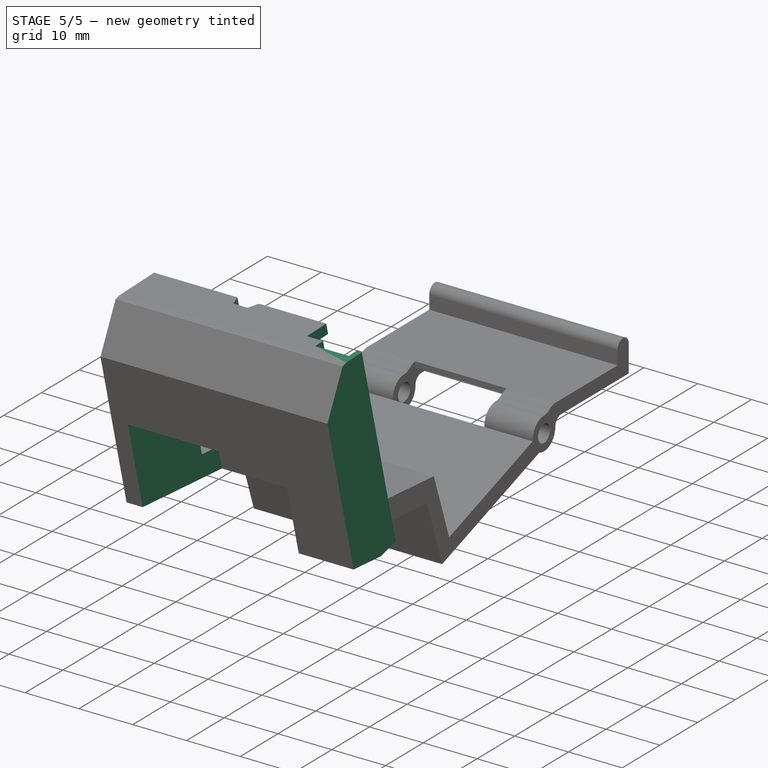
[diagram: stage 5 of 5 — iso view after this stage's code; geometry added in this stage tinted green]
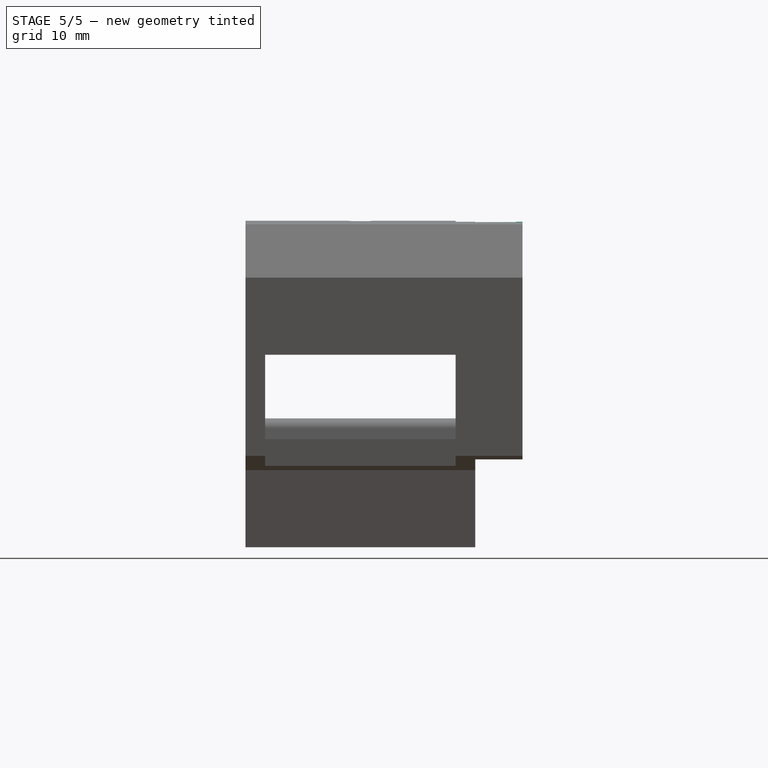
[diagram: stage 5 of 5 — front view after this stage's code; geometry added in this stage tinted green]
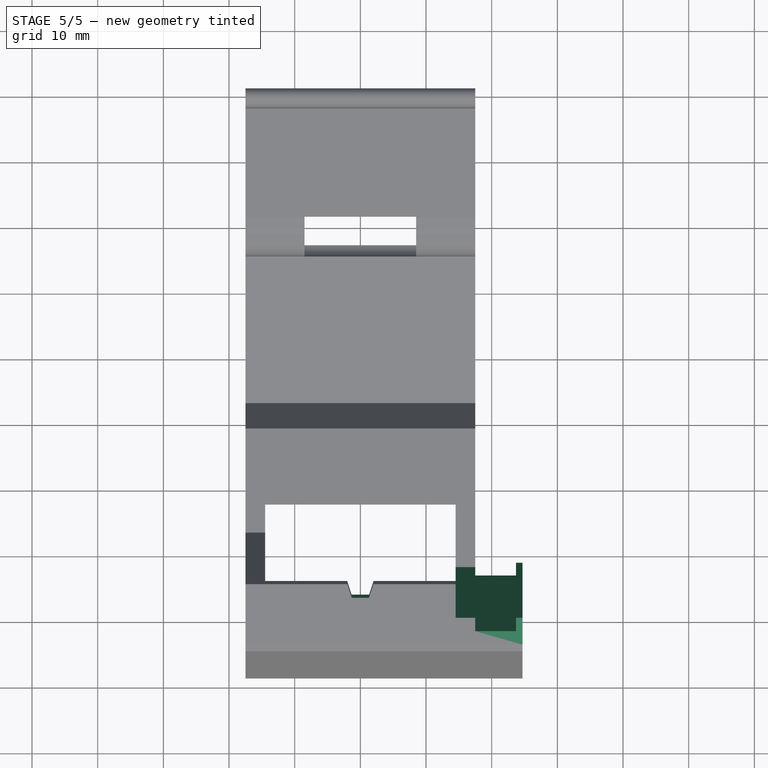
[diagram: stage 5 of 5 — top view after this stage's code; geometry added in this stage tinted green]
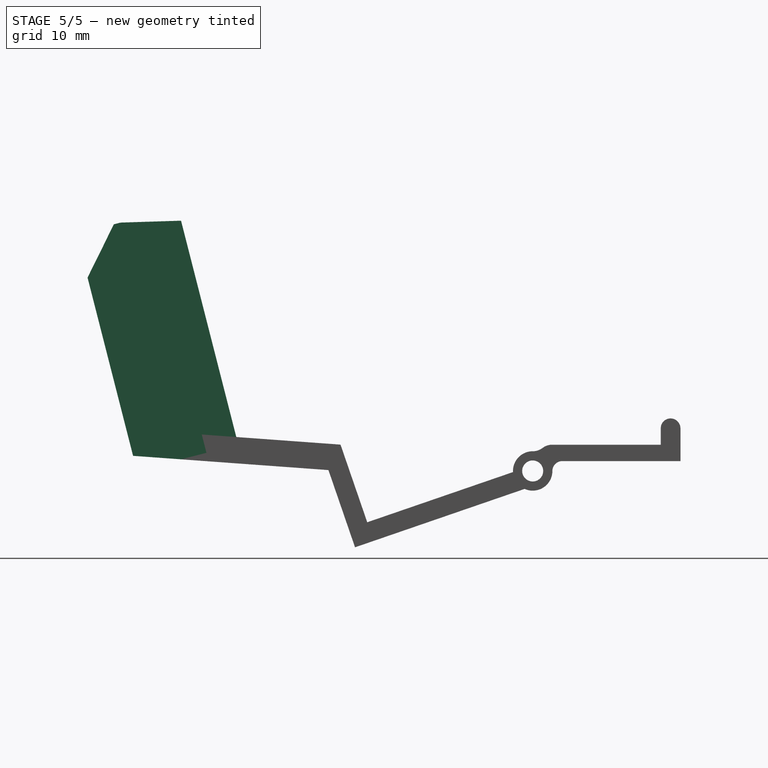
[diagram: stage 5 of 5 — right view after this stage's code; geometry added in this stage tinted green]
FEATURE [Sketcher::SketchObject] Sketch052
  ArcFitTolerance = 1e-06
  AttachmentSupport = -> [Pad025]
  ExternalGeometry = -> [Pad025]
  FullyConstrained = true
  MakeInternals = false
  MapMode = 5
  Placement = pos=(0,15.1732,3.87607) rot=(0,0.61339,0.78978;3.14159rad)
  sketch-geometry (4):
    g0: LineSegment StartX=-24.7 StartY=38.1309 StartZ=0 EndX=-24.7 EndY=0.924273 EndZ=0
    g1: LineSegment StartX=-24.7 StartY=0.924273 StartZ=0 EndX=-23.7 EndY=0.924273 EndZ=0
    g2: LineSegment StartX=-23.7 StartY=0.924273 StartZ=0 EndX=-23.7 EndY=38.1309 EndZ=0
    g3: LineSegment StartX=-23.7 StartY=38.1309 StartZ=0 EndX=-24.7 EndY=38.1309 EndZ=0
  constraints (12):
    c: Coincident(g0,g1)
    c: Coincident(g1,g2)
    c: Coincident(g2,g3)
    c: Coincident(g3,g0)
    c: Vertical(g0)
    c: Vertical(g2)
    c: Horizontal(g1)
    c: Horizontal(g3)
    c: PointOnObject(g0,g-3)
    c: PointOnObject(g1,g-4)
    c: Distance(g3,g3) = 1
    c: Distance(g2,g-3) = 6.2
FEATURE [PartDesign::Pad] Pad026
  BaseFeature = -> Pad025
  Direction = (0,0.968886,0.247506)
  Length = 10
  Length2 = 10
  Profile = -> Sketch052
  ReferenceAxis = -> Sketch052 [N_Axis]
  Refine = true
  Suppressed = false
  Type = 3
  UpToFace = -> Pad025 [Face36]
FEATURE [PartDesign::Pocket] Pocket031
  BaseFeature = -> Pad026
  Direction = (-1,0,0)
  Length = 0
  Length2 = 5
  Profile = -> Pad026 [Face49]
  Refine = true
  Suppressed = false
  Type = 3
  UpToFace = -> Pad026 [Face57]
FEATURE [PartDesign::Pocket] Pocket032
  BaseFeature = -> Pocket031
  Direction = (0,-0.247506,0.968886)
  Length = 10
  Length2 = 5
  Profile = -> Pocket031 [Face52]
  Refine = true
  Suppressed = false
  Type = 0
FEATURE [Sketcher::SketchObject] Sketch053
  ArcFitTolerance = 1e-06
  AttachmentSupport = -> [Pocket032]
  ExternalGeometry = -> [Pocket032]
  FullyConstrained = true
  MakeInternals = false
  MapMode = 5
  Placement = pos=(17.5,0,0) rot=(0.57735,0.57735,0.57735;2.0944rad)
  sketch-geometry (4):
    g0: LineSegment StartX=18.1073 StartY=8.55161 StartZ=0 EndX=10.3262 EndY=39.0116 EndZ=0
    g1: LineSegment StartX=7.25451 StartY=38.915 StartZ=0 EndX=14.9522 EndY=8.78164 EndZ=0
    g2: LineSegment StartX=14.9522 StartY=8.78164 StartZ=0 EndX=18.1073 EndY=8.55161 EndZ=0
    g3: LineSegment StartX=7.25451 StartY=38.915 StartZ=0 EndX=10.3262 EndY=39.0116 EndZ=0
  constraints (10):
    c: PointOnObject(g0,g-6)
    c: PointOnObject(g0,g-4)
    c: Parallel(g0,g-5)
    c: Distance(g0,g-3) = 5
    c: Coincident(g1,g-5)
    c: Coincident(g1,g-6)
    c: Coincident(g2,g1)
    c: Coincident(g2,g0)
    c: Coincident(g3,g0)
    c: Coincident(g1,g3)
FEATURE [PartDesign::Pad] Pad027
  BaseFeature = -> Pocket032
  Direction = (1,0,0)
  Length = 10
  Length2 = 10
  Profile = -> Sketch053
  ReferenceAxis = -> Sketch053 [N_Axis]
  Refine = true
  Suppressed = false
  Type = 3
  UpToFace = -> Pocket032 [Face56]
FEATURE [PartDesign::Pad] Pad028
  BaseFeature = -> Pad027
  Direction = (0,0.968886,0.247506)
  Length = 3
  Length2 = 10
  Profile = -> Pad027 [Face40]
  Refine = true
  Suppressed = false
  Type = 0
FEATURE [PartDesign::Pad] Pad029
  BaseFeature = -> Pad028
  Direction = (0,0.968886,0.247506)
  Length = 3
  Length2 = 10
  Profile = -> Pad028 [Face53]
  Refine = true
  Suppressed = false
  Type = 0
FEATURE [PartDesign::Pad] Pad030
  BaseFeature = -> Pad029
  Direction = (1,0,0)
  Length = 1
  Length2 = 10
  Profile = -> Pad029 [Face7]
  Refine = true
  Suppressed = false
  Type = 0
FEATURE [PartDesign::Pad] Pad031
  BaseFeature = -> Pad030
  Direction = (-1,0,0)
  Length = 1
  Length2 = 10
  Profile = -> Pad030 [Face9]
  Refine = true
  Suppressed = false
  Type = 0
FEATURE [Sketcher::SketchObject] Sketch054
  ArcFitTolerance = 1e-06
  AttachmentSupport = -> [Pad031]
  ExternalGeometry = -> [Pad031]
  FullyConstrained = true
  MakeInternals = false
  MapMode = 5
  Placement = pos=(17.5,0,0) rot=(0.57735,0.57735,0.57735;2.0944rad)
  sketch-geometry (4):
    g0: LineSegment StartX=13.4466 StartY=39.1097 StartZ=0 EndX=15.4456 EndY=39.1726 EndZ=0
    g1: LineSegment StartX=13.4466 StartY=39.1097 StartZ=0 EndX=13.8179 EndY=37.6564 EndZ=0
    g2: LineSegment StartX=13.8179 StartY=37.6564 StartZ=0 EndX=15.8169 EndY=37.7192 EndZ=0
    g3: LineSegment StartX=15.8169 StartY=37.7192 StartZ=0 EndX=15.4456 EndY=39.1726 EndZ=0
  constraints (9):
    c: Coincident(g0,g-6)
    c: PointOnObject(g0,g-5)
    c: Parallel(g0,g-6)
    c: Coincident(g1,g0)
    c: Coincident(g1,g-4)
    c: Coincident(g2,g1)
    c: Coincident(g2,g-5)
    c: Coincident(g3,g2)
    c: Coincident(g3,g0)
FEATURE [PartDesign::Pocket] Pocket033
  BaseFeature = -> Pad031
  Direction = (-1,0,0)
  Length = 0
  Length2 = 5
  Profile = -> Sketch054
  ReferenceAxis = -> Sketch054 [N_Axis]
  Refine = true
  Suppressed = false
  Type = 3
  UpToFace = -> Pad031 [Face7]
FEATURE [Sketcher::SketchObject] Sketch055
  ArcFitTolerance = 1e-06
  AttachmentSupport = -> [Pocket033]
  ExternalGeometry = -> [Pocket033]
  FullyConstrained = true
  MakeInternals = false
  MapMode = 5
  Placement = pos=(17.5,0,0) rot=(0.57735,0.57735,0.57735;2.0944rad)
  sketch-geometry (4):
    g0: LineSegment StartX=12.8784 StartY=41.0452 StartZ=0 EndX=13.3735 EndY=39.1074 EndZ=0
    g1: LineSegment StartX=12.374 StartY=39.076 StartZ=0 EndX=13.3735 EndY=39.1074 EndZ=0
    g2: LineSegment StartX=11.8789 StartY=41.0138 StartZ=0 EndX=12.8784 EndY=41.0452 EndZ=0
    g3: LineSegment StartX=11.8789 StartY=41.0138 StartZ=0 EndX=12.374 EndY=39.076 EndZ=0
  constraints (10):
    c: PointOnObject(g0,g-3)
    c: PointOnObject(g0,g-4)
    c: Coincident(g1,g-5)
    c: Coincident(g1,g0)
    c: Coincident(g2,g-5)
    c: Coincident(g3,g2)
    c: Coincident(g3,g1)
    c: Coincident(g2,g0)
    c: Parallel(g0,g3)
    c: Distance(g2,g2) = 1
FEATURE [PartDesign::Pad] Pad032
  BaseFeature = -> Pocket033
  Direction = (1,0,0)
  Length = 10
  Length2 = 10
  Profile = -> Sketch055
  ReferenceAxis = -> Sketch055 [N_Axis]
  Refine = true
  Suppressed = false
  Type = 3
  UpToFace = -> Pocket033 [Face36]
FEATURE [Sketcher::SketchObject] Sketch056
  ArcFitTolerance = 1e-06
  AttachmentSupport = -> [Pad032]
  ExternalGeometry = -> [Pad032]
  FullyConstrained = true
  MakeInternals = false
  MapMode = 5
  Placement = pos=(17.5,0,0) rot=(0.57735,0.57735,0.57735;2.0944rad)
  sketch-geometry (4):
    g0: LineSegment StartX=10.3262 StartY=39.0116 StartZ=0 EndX=9.83116 EndY=40.9494 EndZ=0
    g1: LineSegment StartX=9.83116 StartY=40.9494 StartZ=0 EndX=14.9506 EndY=41.1103 EndZ=0
    g2: LineSegment StartX=14.9506 StartY=41.1103 StartZ=0 EndX=15.4456 EndY=39.1726 EndZ=0
    g3: LineSegment StartX=15.4456 StartY=39.1726 StartZ=0 EndX=10.3262 EndY=39.0116 EndZ=0
  constraints (9):
    c: Coincident(g0,g-3)
    c: PointOnObject(g0,g-4)
    c: Parallel(g-5,g0)
    c: Coincident(g1,g0)
    c: Coincident(g1,g-5)
    c: Coincident(g2,g1)
    c: Coincident(g2,g-5)
    c: Coincident(g3,g2)
    c: Coincident(g3,g0)
FEATURE [PartDesign::Pocket] Pocket034
  BaseFeature = -> Pad032
  Direction = (-1,0,0)
  Length = 0
  Length2 = 5
  Profile = -> Sketch056
  ReferenceAxis = -> Sketch056 [N_Axis]
  Refine = true
  Suppressed = false
  Type = 3
  UpToFace = -> Pad032 [Face20]
FEATURE [PartDesign::Pad] Pad033
  BaseFeature = -> Pocket034
  Direction = (-1,0,0)
  Length = 10
  Length2 = 10
  Profile = -> Pocket034 [Face40]
  Refine = true
  Suppressed = false
  Type = 3
  UpToFace = -> Pocket034 [Face2]
FEATURE [Sketcher::SketchObject] Sketch057
  ArcFitTolerance = 1e-06
  AttachmentSupport = -> [Pad033]
  ExternalGeometry = -> [Pad033]
  FullyConstrained = true
  MakeInternals = false
  MapMode = 5
  Placement = pos=(-17.5,5.5e-15,-6.87e-14) rot=(0.57735,-0.57735,-0.57735;2.0944rad)
  sketch-geometry (4):
    g0: LineSegment StartX=-14.9506 StartY=41.1103 StartZ=0 EndX=-1.3106 EndY=40.6814 EndZ=0
    g1: LineSegment StartX=-14.9506 StartY=41.1103 StartZ=0 EndX=-14.894 EndY=42.9103 EndZ=0
    g2: LineSegment StartX=-14.894 StartY=42.9103 StartZ=0 EndX=-1.254 EndY=42.4814 EndZ=0
    g3: LineSegment StartX=-1.254 StartY=42.4814 StartZ=0 EndX=-1.3106 EndY=40.6814 EndZ=0
  constraints (11):
    c: Coincident(g0,g-3)
    c: PointOnObject(g-3,g0)
    c: DistanceX(g0,g0) = 13.64
    c: Coincident(g1,g0)
    c: Coincident(g2,g1)
    c: Coincident(g3,g2)
    c: Coincident(g3,g0)
    c: Perpendicular(g0,g1)
    c: Perpendicular(g0,g3)
    c: Parallel(g2,g0)
    c: DistanceY(g1,g1) = 1.8
FEATURE [PartDesign::Pocket] Pocket035
  BaseFeature = -> Pad033
  Direction = (1,0,4e-15)
  Length = 5
  Length2 = 5
  Profile = -> Sketch057
  ReferenceAxis = -> Sketch057 [N_Axis]
  Refine = true
  Suppressed = false
  Type = 1
FEATURE [Sketcher::SketchObject] Sketch058
  ArcFitTolerance = 1e-06
  AttachmentSupport = -> [Pocket035]
  ExternalGeometry = -> [Pocket035]
  FullyConstrained = true
  MakeInternals = false
  MapMode = 5
  Placement = pos=(-2.3e-15,18.0799,4.61859) rot=(0,0.61339,0.78978;3.14159rad)
  sketch-geometry (4):
    g0: LineSegment StartX=-23.7 StartY=41.5042 StartZ=0 EndX=-23.7 EndY=-3.16573 EndZ=0
    g1: LineSegment StartX=-23.7 StartY=-3.16573 StartZ=0 EndX=-17.5 EndY=-3.16573 EndZ=0
    g2: LineSegment StartX=-17.5 StartY=-3.16573 StartZ=0 EndX=-17.5 EndY=41.5042 EndZ=0
    g3: LineSegment StartX=-17.5 StartY=41.5042 StartZ=0 EndX=-23.7 EndY=41.5042 EndZ=0
  constraints (12):
    c: Coincident(g0,g1)
    c: Coincident(g1,g2)
    c: Coincident(g2,g3)
    c: Coincident(g3,g0)
    c: Vertical(g0)
    c: Vertical(g2)
    c: Horizontal(g1)
    c: Horizontal(g3)
    c: PointOnObject(g2,g-3)
    c: PointOnObject(g0,g-4)
    c: Distance(g-3,g1) = 4.09
    c: DistanceY(g-3,g2) = 4.04
FEATURE [PartDesign::Pocket] Pocket036
  BaseFeature = -> Pocket035
  Direction = (0,-0.968886,-0.247506)
  Length = 1
  Length2 = 5
  Profile = -> Sketch058
  ReferenceAxis = -> Sketch058 [N_Axis]
  Refine = true
  Suppressed = false
  Type = 0
FEATURE [PartDesign::Body] Body  label="k1_hopper"
  AllowCompound = false
  Group = -> [Sketch,Pad,Sketch001,Pocket,Sketch002,Pocket001,Sketch003,Pad001,Sketch004,Pad002,Sketch005,Pocket002,Sketch006,Pad003,Sketch007,Pocket003,Sketch008,Pocket004,Sketch009,Pad004,Sketch010,Pocket005,Sketch011,Pad005,Sketch012,Pocket006,Sketch013,Pocket007,Sketch014,Pocket008,Sketch015,Pocket009,Sketch016,Pad006,Sketch017,Pocket010,Sketch018,Pocket011,Sketch019,Pocket012,Sketch020,Pocket013,Sketch021,+87 more]
  Origin = -> Origin
  Tip = -> Pocket036
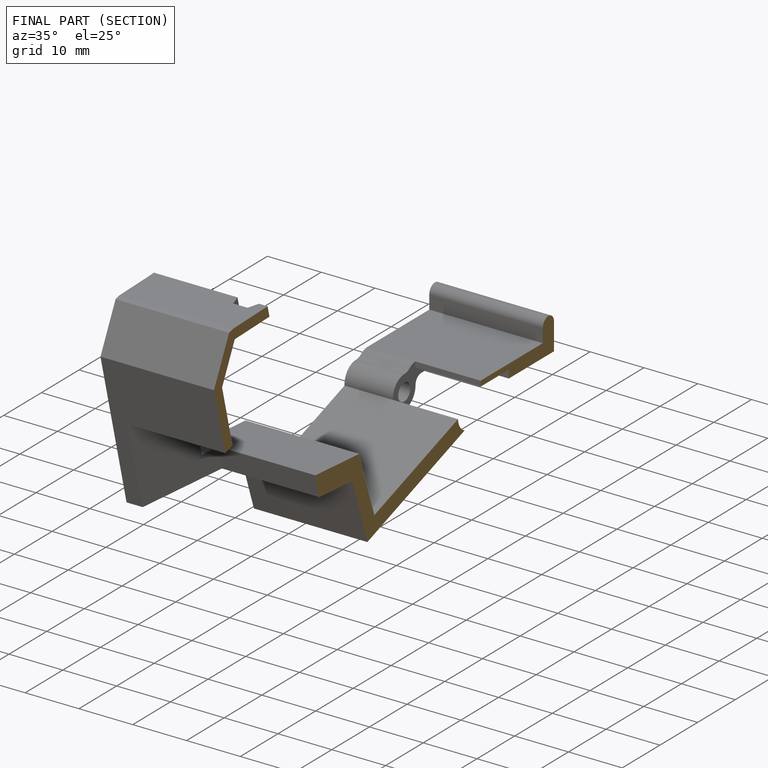
[diagram: finished part — half-section view (interior)]
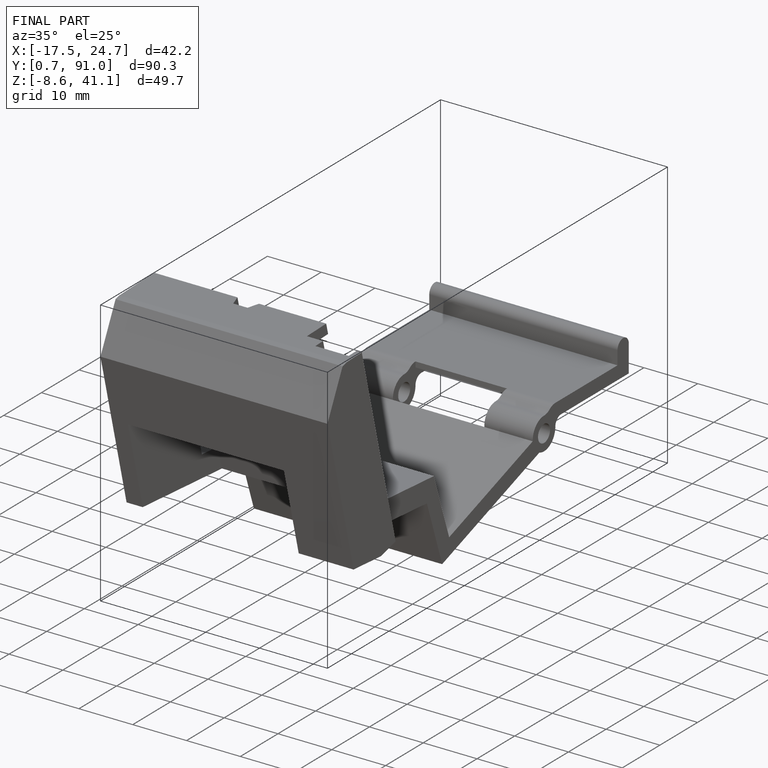
[diagram: finished part — iso view with bounding-box wireframe]
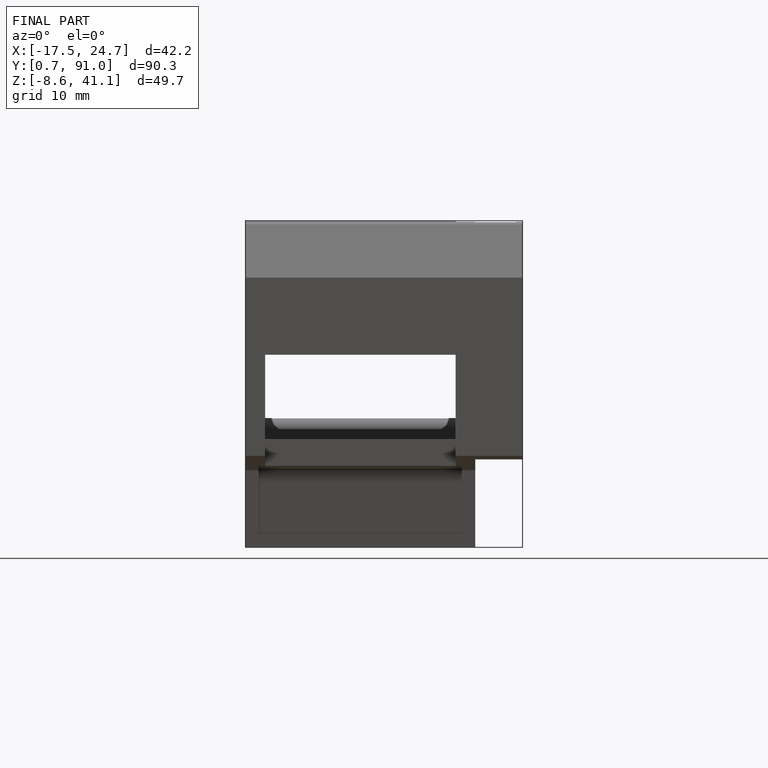
[diagram: finished part — front view with bounding-box wireframe]
